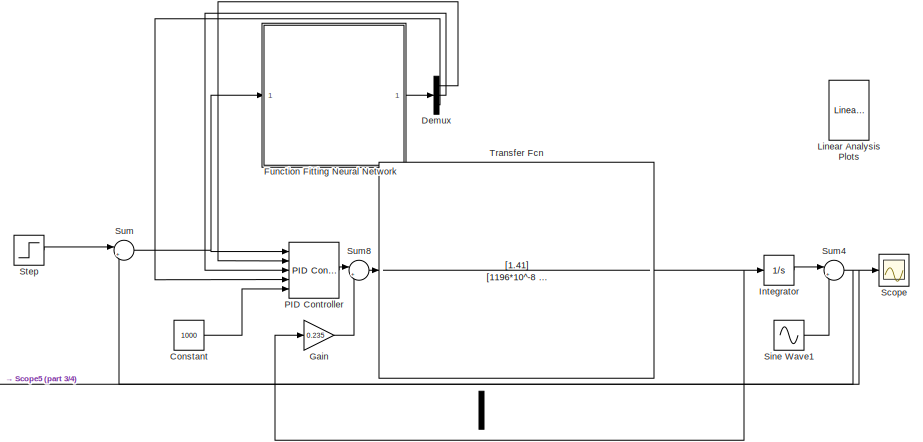
[diagram: root canvas - part 1/4, top right region]
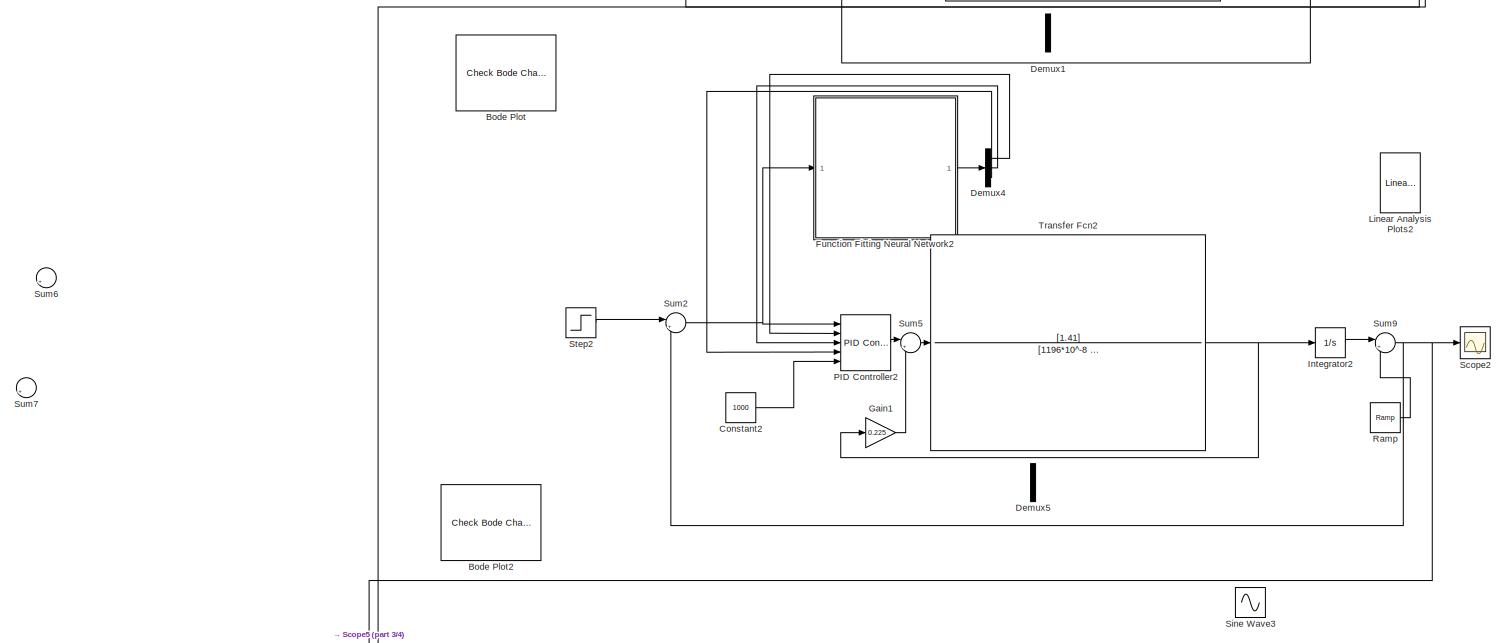
[diagram: root canvas - part 2/4, full width, middle band]
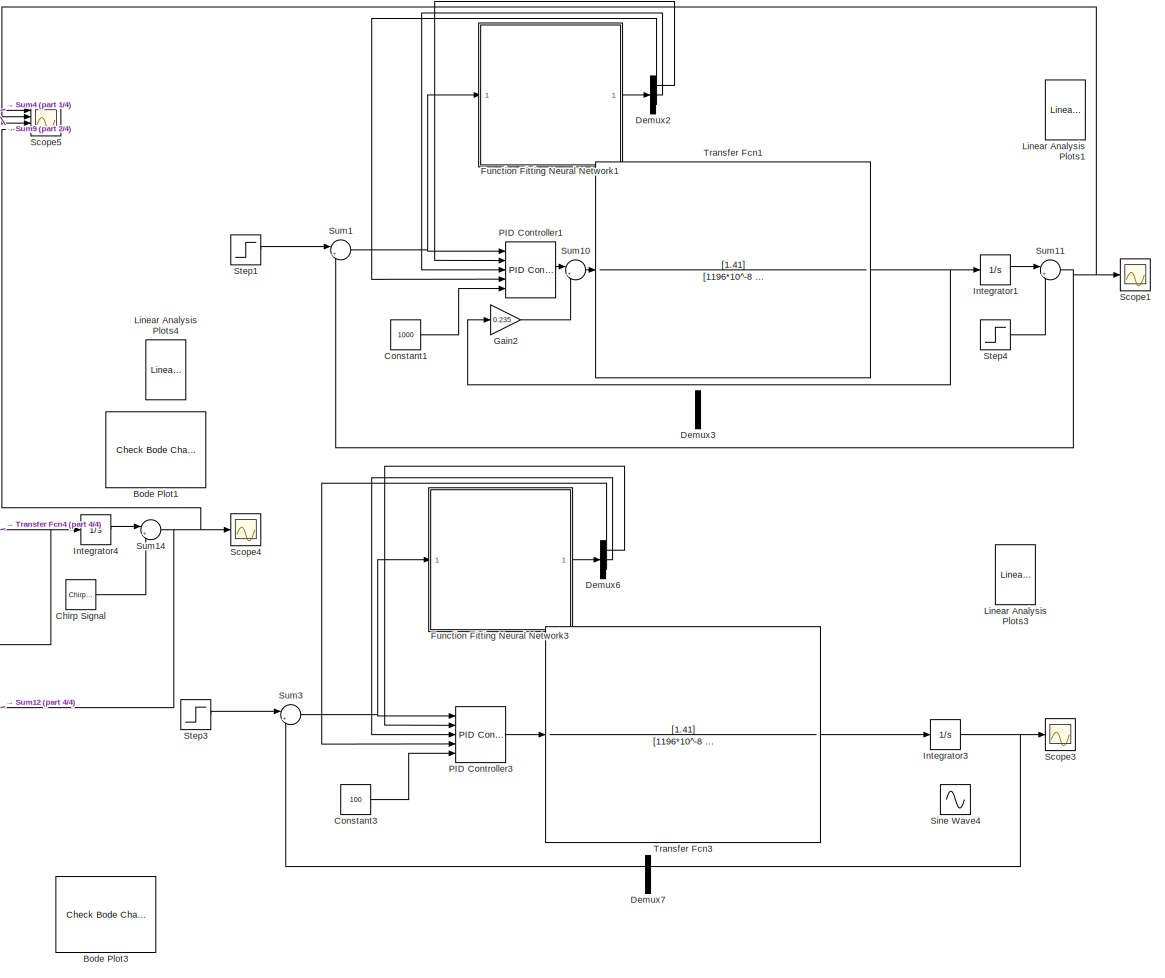
[diagram: root canvas - part 3/4, bottom right region]
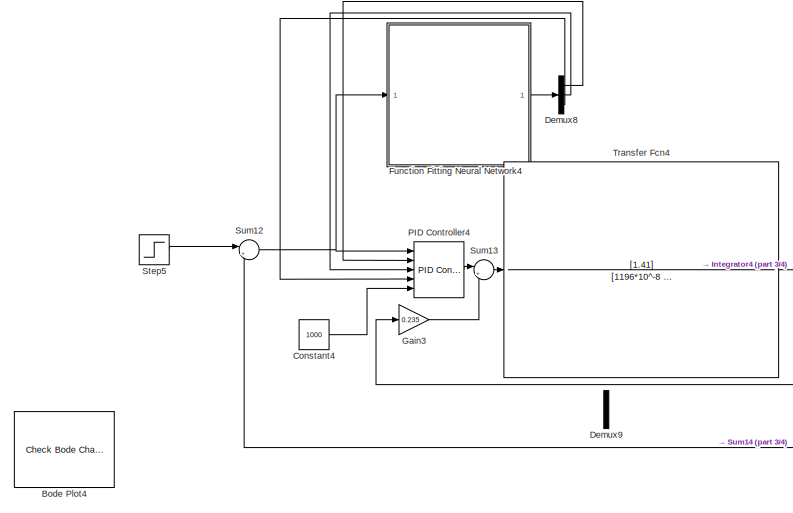
[diagram: root canvas - part 4/4, bottom left region]
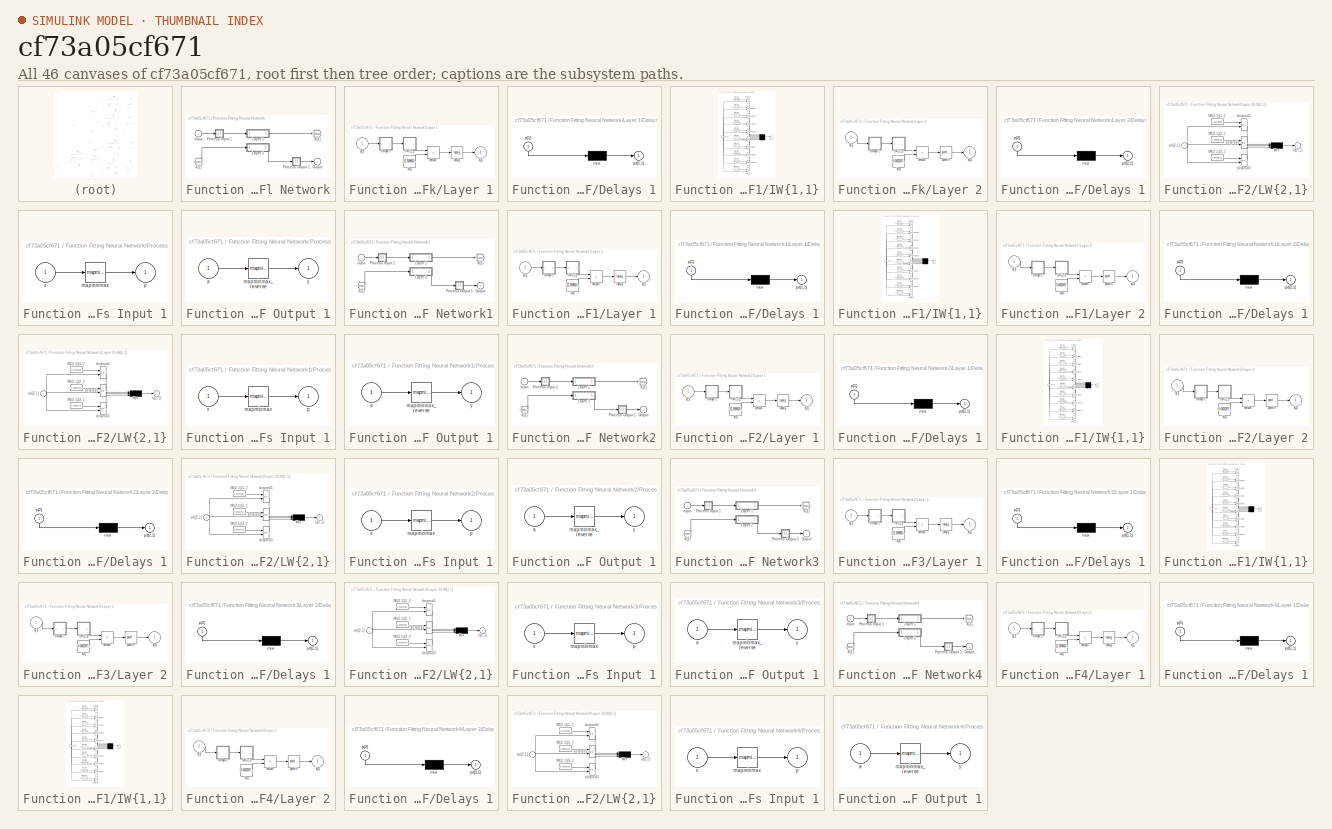
[diagram: thumbnail index - all 46 canvases of the model, root first then tree order]
MODEL slx_cf73a05cf671
KIND model
CONFIG AbsTol = auto
CONFIG EnableMultiTasking = off
CONFIG FixedStep = auto
CONFIG MaxStep = auto
CONFIG MinStep = auto
CONFIG RelTol = 1e-3
CONFIG SampleTimeConstraint = Unconstrained
CONFIG Solver = VariableStepAuto
CONFIG SolverName = VariableStepAuto
CONFIG StartTime = 0.0
CONFIG StopTime = 100
BLOCK [Reference] Bode Plot  REF=slctrlblks/Model Verification/Check Bode 
Characteristics
  InstantiateOnLoad = on
  Ports = []
  SourceBlock = slctrlblks/Model Verification/Check Bode \nCharacteristics
  SourceProductBaseCode = SD
  SourceType = Checks_Bode
BLOCK [Reference] Bode Plot1  REF=slctrlblks/Model Verification/Check Bode 
Characteristics
  InstantiateOnLoad = on
  Ports = []
  SourceBlock = slctrlblks/Model Verification/Check Bode \nCharacteristics
  SourceProductBaseCode = SD
  SourceType = Checks_Bode
BLOCK [Reference] Bode Plot2  REF=slctrlblks/Model Verification/Check Bode 
Characteristics
  InstantiateOnLoad = on
  Ports = []
  SourceBlock = slctrlblks/Model Verification/Check Bode \nCharacteristics
  SourceProductBaseCode = SD
  SourceType = Checks_Bode
BLOCK [Reference] Bode Plot3  REF=slctrlblks/Model Verification/Check Bode 
Characteristics
  InstantiateOnLoad = on
  Ports = []
  SourceBlock = slctrlblks/Model Verification/Check Bode \nCharacteristics
  SourceProductBaseCode = SD
  SourceType = Checks_Bode
BLOCK [Reference] Bode Plot4  REF=slctrlblks/Model Verification/Check Bode 
Characteristics
  InstantiateOnLoad = on
  Ports = []
  SourceBlock = slctrlblks/Model Verification/Check Bode \nCharacteristics
  SourceProductBaseCode = SD
  SourceType = Checks_Bode
BLOCK [Reference] Chirp Signal  REF=simulink/Sources/Chirp Signal
  Ports = [0, 1]
  SourceBlock = simulink/Sources/Chirp Signal
  SourceProductBaseCode = SL
  SourceType = chirp
BLOCK [Constant] Constant
  Value = 1000
BLOCK [Constant] Constant1
  Value = 1000
BLOCK [Constant] Constant2
  Value = 1000
BLOCK [Constant] Constant3
  Value = 100
BLOCK [Constant] Constant4
  Value = 1000
BLOCK [Demux] Demux
  Outputs = 3
  Ports = [1, 3]
BLOCK [Demux] Demux1
  Outputs = 3
  Ports = [1, 3]
BLOCK [Demux] Demux2
  Outputs = 3
  Ports = [1, 3]
BLOCK [Demux] Demux3
  Outputs = 3
  Ports = [1, 3]
BLOCK [Demux] Demux4
  Outputs = 3
  Ports = [1, 3]
BLOCK [Demux] Demux5
  Outputs = 3
  Ports = [1, 3]
BLOCK [Demux] Demux6
  Outputs = 3
  Ports = [1, 3]
BLOCK [Demux] Demux7
  Outputs = 3
  Ports = [1, 3]
BLOCK [Demux] Demux8
  Outputs = 3
  Ports = [1, 3]
BLOCK [Demux] Demux9
  Outputs = 3
  Ports = [1, 3]
BLOCK [SubSystem] Function Fitting Neural Network
  Ports = [1, 1]
  RequestExecContextInheritance = off
BLOCK [From] Function Fitting Neural Network/ a{1} 
  GotoTag = feedback1
BLOCK [Inport] Function Fitting Neural Network/Input
  PortDimensions = 1
BLOCK [SubSystem] Function Fitting Neural Network/Layer 1
  Ports = [1, 1]
  RequestExecContextInheritance = off
BLOCK [SubSystem] Function Fitting Neural Network/Layer 1/Delays 1
  Ports = [1, 1]
  RequestExecContextInheritance = off
BLOCK [Mux] Function Fitting Neural Network/Layer 1/Delays 1/mux
  Inputs = 1
  Ports = [1, 1]
BLOCK [Outport] Function Fitting Neural Network/Layer 1/Delays 1/pd{1,1}
BLOCK [Inport] Function Fitting Neural Network/Layer 1/Delays 1/p{1}
  NameLocation = left
  PortDimensions = 1
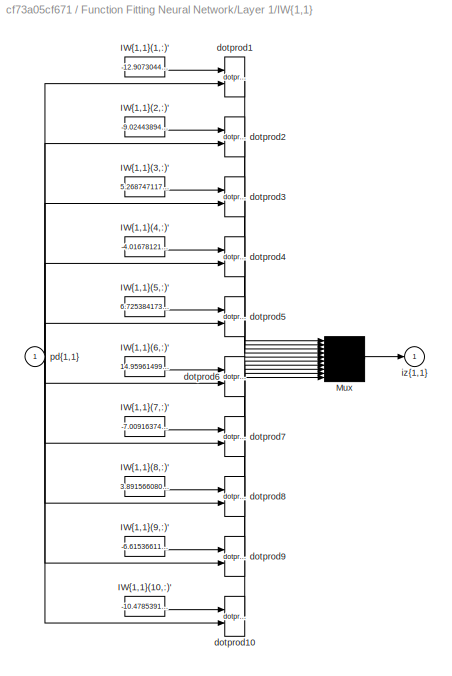
BLOCK [SubSystem] Function Fitting Neural Network/Layer 1/IW{1,1}
  Ports = [1, 1]
  RequestExecContextInheritance = off
BLOCK [Constant] Function Fitting Neural Network/Layer 1/IW{1,1}/IW{1,1}(1,:)'
  Value = -12.9073044744596590049923179321922361850738525390625
BLOCK [Constant] Function Fitting Neural Network/Layer 1/IW{1,1}/IW{1,1}(10,:)'
  Value = -10.4785391749825560481212960439734160900115966796875
BLOCK [Constant] Function Fitting Neural Network/Layer 1/IW{1,1}/IW{1,1}(2,:)'
  Value = -9.0244389478379520852513451245613396167755126953125
BLOCK [Constant] Function Fitting Neural Network/Layer 1/IW{1,1}/IW{1,1}(3,:)'
  Value = 5.26874711704473241979940212331712245941162109375
BLOCK [Constant] Function Fitting Neural Network/Layer 1/IW{1,1}/IW{1,1}(4,:)'
  Value = -4.016781218023648847292861319147050380706787109375
BLOCK [Constant] Function Fitting Neural Network/Layer 1/IW{1,1}/IW{1,1}(5,:)'
  Value = 6.7253841730729302383906542672775685787200927734375
BLOCK [Constant] Function Fitting Neural Network/Layer 1/IW{1,1}/IW{1,1}(6,:)'
  Value = 14.959614993743709732143543078564107418060302734375
BLOCK [Constant] Function Fitting Neural Network/Layer 1/IW{1,1}/IW{1,1}(7,:)'
  Value = -7.00916374216306170552570620202459394931793212890625
BLOCK [Constant] Function Fitting Neural Network/Layer 1/IW{1,1}/IW{1,1}(8,:)'
  Value = 3.89156608010953330989423193386755883693695068359375
BLOCK [Constant] Function Fitting Neural Network/Layer 1/IW{1,1}/IW{1,1}(9,:)'
  Value = -6.61536611858912859673864659271202981472015380859375
BLOCK [Mux] Function Fitting Neural Network/Layer 1/IW{1,1}/Mux
  Inputs = 10
  Ports = [10, 1]
BLOCK [Reference] Function Fitting Neural Network/Layer 1/IW{1,1}/dotprod1  REF=neural/Weight Functions/dotprod
  Ports = [2, 1]
  SourceBlock = neural/Weight Functions/dotprod
  SourceProductBaseCode = NN
  SourceType = DOTPROD
BLOCK [Reference] Function Fitting Neural Network/Layer 1/IW{1,1}/dotprod10  REF=neural/Weight Functions/dotprod
  Ports = [2, 1]
  SourceBlock = neural/Weight Functions/dotprod
  SourceProductBaseCode = NN
  SourceType = DOTPROD
BLOCK [Reference] Function Fitting Neural Network/Layer 1/IW{1,1}/dotprod2  REF=neural/Weight Functions/dotprod
  Ports = [2, 1]
  SourceBlock = neural/Weight Functions/dotprod
  SourceProductBaseCode = NN
  SourceType = DOTPROD
BLOCK [Reference] Function Fitting Neural Network/Layer 1/IW{1,1}/dotprod3  REF=neural/Weight Functions/dotprod
  Ports = [2, 1]
  SourceBlock = neural/Weight Functions/dotprod
  SourceProductBaseCode = NN
  SourceType = DOTPROD
BLOCK [Reference] Function Fitting Neural Network/Layer 1/IW{1,1}/dotprod4  REF=neural/Weight Functions/dotprod
  Ports = [2, 1]
  SourceBlock = neural/Weight Functions/dotprod
  SourceProductBaseCode = NN
  SourceType = DOTPROD
BLOCK [Reference] Function Fitting Neural Network/Layer 1/IW{1,1}/dotprod5  REF=neural/Weight Functions/dotprod
  Ports = [2, 1]
  SourceBlock = neural/Weight Functions/dotprod
  SourceProductBaseCode = NN
  SourceType = DOTPROD
BLOCK [Reference] Function Fitting Neural Network/Layer 1/IW{1,1}/dotprod6  REF=neural/Weight Functions/dotprod
  Ports = [2, 1]
  SourceBlock = neural/Weight Functions/dotprod
  SourceProductBaseCode = NN
  SourceType = DOTPROD
BLOCK [Reference] Function Fitting Neural Network/Layer 1/IW{1,1}/dotprod7  REF=neural/Weight Functions/dotprod
  Ports = [2, 1]
  SourceBlock = neural/Weight Functions/dotprod
  SourceProductBaseCode = NN
  SourceType = DOTPROD
BLOCK [Reference] Function Fitting Neural Network/Layer 1/IW{1,1}/dotprod8  REF=neural/Weight Functions/dotprod
  Ports = [2, 1]
  SourceBlock = neural/Weight Functions/dotprod
  SourceProductBaseCode = NN
  SourceType = DOTPROD
BLOCK [Reference] Function Fitting Neural Network/Layer 1/IW{1,1}/dotprod9  REF=neural/Weight Functions/dotprod
  Ports = [2, 1]
  SourceBlock = neural/Weight Functions/dotprod
  SourceProductBaseCode = NN
  SourceType = DOTPROD
BLOCK [Outport] Function Fitting Neural Network/Layer 1/IW{1,1}/iz{1,1}
BLOCK [Inport] Function Fitting Neural Network/Layer 1/IW{1,1}/pd{1,1}
  PortDimensions = 1
BLOCK [Outport] Function Fitting Neural Network/Layer 1/a{1}
  InitialOutput = [0;0;0;0;0;0;0;0;0;0]
BLOCK [Constant] Function Fitting Neural Network/Layer 1/b{1}
  Value = [12.3599620324570338425473892129957675933837890625;7.28462692697473102043659309856593608856201171875;-3.147878652254105791286065141321159899234771728515625;1.090504508044382259157600856269709765911102294921875;-0.2230347377048832180346238374113454483449459075927734375;1.728406700369881310308528554742224514484405517578125;-1.8157799782530730237084526379476301372051239013671875;2.0627538561415059703...<+136ch>  <repeated x5 — deduplicated; at blocks: b{1}>
BLOCK [Sum] Function Fitting Neural Network/Layer 1/netsum
  IconShape = rectangular
  InputSameDT = on
  Inputs = 2
  OutDataTypeStr = Inherit: Same as first input
  Ports = [2, 1]
  SaturateOnIntegerOverflow = on
BLOCK [Inport] Function Fitting Neural Network/Layer 1/p{1}
  PortDimensions = 1
BLOCK [Reference] Function Fitting Neural Network/Layer 1/tansig  REF=neural/Transfer Functions/tansig
  Ports = [1, 1]
  SourceBlock = neural/Transfer Functions/tansig
  SourceProductBaseCode = NN
  SourceType = TANSIG
BLOCK [SubSystem] Function Fitting Neural Network/Layer 2
  Ports = [1, 1]
  RequestExecContextInheritance = off
BLOCK [SubSystem] Function Fitting Neural Network/Layer 2/Delays 1
  Ports = [1, 1]
  RequestExecContextInheritance = off
BLOCK [Mux] Function Fitting Neural Network/Layer 2/Delays 1/mux
  Inputs = 1
  Ports = [1, 1]
BLOCK [Outport] Function Fitting Neural Network/Layer 2/Delays 1/pd{2,1}
BLOCK [Inport] Function Fitting Neural Network/Layer 2/Delays 1/p{2}
  NameLocation = left
  PortDimensions = 10
BLOCK [SubSystem] Function Fitting Neural Network/Layer 2/LW{2,1}
  Ports = [1, 1]
  RequestExecContextInheritance = off
BLOCK [Constant] Function Fitting Neural Network/Layer 2/LW{2,1}/IW{2,1}(1,:)'
  Value = [0.033132358651691791451288082726023276336491107940673828125;0.039364685937330730347571972060904954560101032257080078125;-0.0727785432769227913496479231980629265308380126953125;0.11548128599358171986200005676437285728752613067626953125;-0.021208388639714713386208444489966495893895626068115234375;-0.060836292494181119783203115503056324087083339691162109375;0.1313300064448214565793193742138100787997...<+188ch>  <repeated x5 — deduplicated; at blocks: IW{2,1}(1,:)'>
BLOCK [Constant] Function Fitting Neural Network/Layer 2/LW{2,1}/IW{2,1}(2,:)'
  Value = [0.0990670389886005586799200273162568919360637664794921875;0.11057148049165756165113094766638823784887790679931640625;-0.2226024964947059536779505606318707577884197235107421875;0.3177140935935314214333402560441754758358001708984375;-0.1351418202673890511800181002399767749011516571044921875;0.028823984393284728111606085576568148098886013031005859375;0.02718290228827262983157808662326715420931577682...<+191ch>  <repeated x5 — deduplicated; at blocks: IW{2,1}(2,:)'>
BLOCK [Constant] Function Fitting Neural Network/Layer 2/LW{2,1}/IW{2,1}(3,:)'
  Value = [0.040067730043734671452337892105788341723382472991943359375;0.0469737740924170699141626528216875158250331878662109375;-0.08844285697131214207811211736043333075940608978271484375;0.1372497036609894582870339263536152429878711700439453125;-0.032578254943136798760239258854198851622641086578369140625;-0.04828750806303512554951140600678627379238605499267578125;0.1221419948081097217595925030764192342758...<+183ch>  <repeated x5 — deduplicated; at blocks: IW{2,1}(3,:)'>
BLOCK [Mux] Function Fitting Neural Network/Layer 2/LW{2,1}/Mux
  Inputs = 3
  Ports = [3, 1]
BLOCK [Inport] Function Fitting Neural Network/Layer 2/LW{2,1}/ad{2,1}
  PortDimensions = 10
BLOCK [Reference] Function Fitting Neural Network/Layer 2/LW{2,1}/dotprod1  REF=neural/Weight Functions/dotprod
  Ports = [2, 1]
  SourceBlock = neural/Weight Functions/dotprod
  SourceProductBaseCode = NN
  SourceType = DOTPROD
BLOCK [Reference] Function Fitting Neural Network/Layer 2/LW{2,1}/dotprod2  REF=neural/Weight Functions/dotprod
  Ports = [2, 1]
  SourceBlock = neural/Weight Functions/dotprod
  SourceProductBaseCode = NN
  SourceType = DOTPROD
BLOCK [Reference] Function Fitting Neural Network/Layer 2/LW{2,1}/dotprod3  REF=neural/Weight Functions/dotprod
  Ports = [2, 1]
  SourceBlock = neural/Weight Functions/dotprod
  SourceProductBaseCode = NN
  SourceType = DOTPROD
BLOCK [Outport] Function Fitting Neural Network/Layer 2/LW{2,1}/lz{2,1}
BLOCK [Inport] Function Fitting Neural Network/Layer 2/a{1} 
  PortDimensions = 10
BLOCK [Outport] Function Fitting Neural Network/Layer 2/a{2}
  InitialOutput = [0;0;0]
BLOCK [Constant] Function Fitting Neural Network/Layer 2/b{2}
  Value = [0.043259772646987708355492685541321407072246074676513671875;-0.0163242287832554393289807848077543894760310649871826171875;0.037062363768982579947941502496178145520389080047607421875]
BLOCK [Sum] Function Fitting Neural Network/Layer 2/netsum
  IconShape = rectangular
  InputSameDT = on
  Inputs = 2
  OutDataTypeStr = Inherit: Same as first input
  Ports = [2, 1]
  SaturateOnIntegerOverflow = on
BLOCK [Reference] Function Fitting Neural Network/Layer 2/purelin  REF=neural/Transfer Functions/purelin
  Ports = [1, 1]
  SourceBlock = neural/Transfer Functions/purelin
  SourceProductBaseCode = NN
  SourceType = PURELIN
BLOCK [Outport] Function Fitting Neural Network/Output
  InitialOutput = [0;0;0]
BLOCK [SubSystem] Function Fitting Neural Network/Process Input 1
  Ports = [1, 1]
  RequestExecContextInheritance = off
BLOCK [Reference] Function Fitting Neural Network/Process Input 1/mapminmax  REF=neural/Processing Functions/mapminmax
  Ports = [1, 1]
  SourceBlock = neural/Processing Functions/mapminmax
  SourceProductBaseCode = NN
  SourceType = MAPMINMAX Preprocess
BLOCK [Outport] Function Fitting Neural Network/Process Input 1/p
  PortDimensions = 1
BLOCK [Inport] Function Fitting Neural Network/Process Input 1/x
  PortDimensions = 1
BLOCK [SubSystem] Function Fitting Neural Network/Process Output 1
  Ports = [1, 1]
  RequestExecContextInheritance = off
BLOCK [Inport] Function Fitting Neural Network/Process Output 1/a
  PortDimensions = 3
BLOCK [Reference] Function Fitting Neural Network/Process Output 1/mapminmax_reverse  REF=neural/Processing Functions/mapminmax_reverse
  Ports = [1, 1]
  SourceBlock = neural/Processing Functions/mapminmax_reverse
  SourceProductBaseCode = NN
  SourceType = MAPMINMAX Reverse Process
BLOCK [Outport] Function Fitting Neural Network/Process Output 1/y
  PortDimensions = 3
BLOCK [Goto] Function Fitting Neural Network/a{1}
  GotoTag = feedback1
BLOCK [SubSystem] Function Fitting Neural Network1
  Ports = [1, 1]
  RequestExecContextInheritance = off
BLOCK [From] Function Fitting Neural Network1/ a{1} 
  GotoTag = feedback1
BLOCK [Inport] Function Fitting Neural Network1/Input
  PortDimensions = 1
BLOCK [SubSystem] Function Fitting Neural Network1/Layer 1
  Ports = [1, 1]
  RequestExecContextInheritance = off
BLOCK [SubSystem] Function Fitting Neural Network1/Layer 1/Delays 1
  Ports = [1, 1]
  RequestExecContextInheritance = off
BLOCK [Mux] Function Fitting Neural Network1/Layer 1/Delays 1/mux
  Inputs = 1
  Ports = [1, 1]
BLOCK [Outport] Function Fitting Neural Network1/Layer 1/Delays 1/pd{1,1}
BLOCK [Inport] Function Fitting Neural Network1/Layer 1/Delays 1/p{1}
  NameLocation = left
  PortDimensions = 1
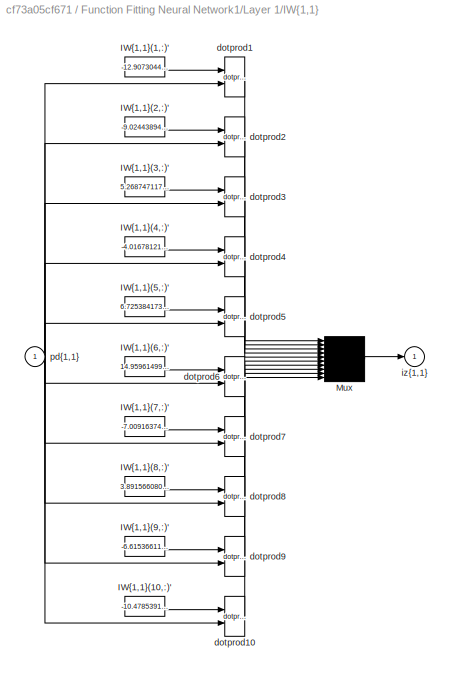
BLOCK [SubSystem] Function Fitting Neural Network1/Layer 1/IW{1,1}
  Ports = [1, 1]
  RequestExecContextInheritance = off
BLOCK [Constant] Function Fitting Neural Network1/Layer 1/IW{1,1}/IW{1,1}(1,:)'
  Value = -12.9073044744596590049923179321922361850738525390625
BLOCK [Constant] Function Fitting Neural Network1/Layer 1/IW{1,1}/IW{1,1}(10,:)'
  Value = -10.4785391749825560481212960439734160900115966796875
BLOCK [Constant] Function Fitting Neural Network1/Layer 1/IW{1,1}/IW{1,1}(2,:)'
  Value = -9.0244389478379520852513451245613396167755126953125
BLOCK [Constant] Function Fitting Neural Network1/Layer 1/IW{1,1}/IW{1,1}(3,:)'
  Value = 5.26874711704473241979940212331712245941162109375
BLOCK [Constant] Function Fitting Neural Network1/Layer 1/IW{1,1}/IW{1,1}(4,:)'
  Value = -4.016781218023648847292861319147050380706787109375
BLOCK [Constant] Function Fitting Neural Network1/Layer 1/IW{1,1}/IW{1,1}(5,:)'
  Value = 6.7253841730729302383906542672775685787200927734375
BLOCK [Constant] Function Fitting Neural Network1/Layer 1/IW{1,1}/IW{1,1}(6,:)'
  Value = 14.959614993743709732143543078564107418060302734375
BLOCK [Constant] Function Fitting Neural Network1/Layer 1/IW{1,1}/IW{1,1}(7,:)'
  Value = -7.00916374216306170552570620202459394931793212890625
BLOCK [Constant] Function Fitting Neural Network1/Layer 1/IW{1,1}/IW{1,1}(8,:)'
  Value = 3.89156608010953330989423193386755883693695068359375
BLOCK [Constant] Function Fitting Neural Network1/Layer 1/IW{1,1}/IW{1,1}(9,:)'
  Value = -6.61536611858912859673864659271202981472015380859375
BLOCK [Mux] Function Fitting Neural Network1/Layer 1/IW{1,1}/Mux
  Inputs = 10
  Ports = [10, 1]
BLOCK [Reference] Function Fitting Neural Network1/Layer 1/IW{1,1}/dotprod1  REF=neural/Weight Functions/dotprod
  Ports = [2, 1]
  SourceBlock = neural/Weight Functions/dotprod
  SourceProductBaseCode = NN
  SourceType = DOTPROD
BLOCK [Reference] Function Fitting Neural Network1/Layer 1/IW{1,1}/dotprod10  REF=neural/Weight Functions/dotprod
  Ports = [2, 1]
  SourceBlock = neural/Weight Functions/dotprod
  SourceProductBaseCode = NN
  SourceType = DOTPROD
BLOCK [Reference] Function Fitting Neural Network1/Layer 1/IW{1,1}/dotprod2  REF=neural/Weight Functions/dotprod
  Ports = [2, 1]
  SourceBlock = neural/Weight Functions/dotprod
  SourceProductBaseCode = NN
  SourceType = DOTPROD
BLOCK [Reference] Function Fitting Neural Network1/Layer 1/IW{1,1}/dotprod3  REF=neural/Weight Functions/dotprod
  Ports = [2, 1]
  SourceBlock = neural/Weight Functions/dotprod
  SourceProductBaseCode = NN
  SourceType = DOTPROD
BLOCK [Reference] Function Fitting Neural Network1/Layer 1/IW{1,1}/dotprod4  REF=neural/Weight Functions/dotprod
  Ports = [2, 1]
  SourceBlock = neural/Weight Functions/dotprod
  SourceProductBaseCode = NN
  SourceType = DOTPROD
BLOCK [Reference] Function Fitting Neural Network1/Layer 1/IW{1,1}/dotprod5  REF=neural/Weight Functions/dotprod
  Ports = [2, 1]
  SourceBlock = neural/Weight Functions/dotprod
  SourceProductBaseCode = NN
  SourceType = DOTPROD
BLOCK [Reference] Function Fitting Neural Network1/Layer 1/IW{1,1}/dotprod6  REF=neural/Weight Functions/dotprod
  Ports = [2, 1]
  SourceBlock = neural/Weight Functions/dotprod
  SourceProductBaseCode = NN
  SourceType = DOTPROD
BLOCK [Reference] Function Fitting Neural Network1/Layer 1/IW{1,1}/dotprod7  REF=neural/Weight Functions/dotprod
  Ports = [2, 1]
  SourceBlock = neural/Weight Functions/dotprod
  SourceProductBaseCode = NN
  SourceType = DOTPROD
BLOCK [Reference] Function Fitting Neural Network1/Layer 1/IW{1,1}/dotprod8  REF=neural/Weight Functions/dotprod
  Ports = [2, 1]
  SourceBlock = neural/Weight Functions/dotprod
  SourceProductBaseCode = NN
  SourceType = DOTPROD
BLOCK [Reference] Function Fitting Neural Network1/Layer 1/IW{1,1}/dotprod9  REF=neural/Weight Functions/dotprod
  Ports = [2, 1]
  SourceBlock = neural/Weight Functions/dotprod
  SourceProductBaseCode = NN
  SourceType = DOTPROD
BLOCK [Outport] Function Fitting Neural Network1/Layer 1/IW{1,1}/iz{1,1}
BLOCK [Inport] Function Fitting Neural Network1/Layer 1/IW{1,1}/pd{1,1}
  PortDimensions = 1
BLOCK [Outport] Function Fitting Neural Network1/Layer 1/a{1}
  InitialOutput = [0;0;0;0;0;0;0;0;0;0]
BLOCK [Constant] Function Fitting Neural Network1/Layer 1/b{1}
BLOCK [Sum] Function Fitting Neural Network1/Layer 1/netsum
  IconShape = rectangular
  InputSameDT = on
  Inputs = 2
  OutDataTypeStr = Inherit: Same as first input
  Ports = [2, 1]
  SaturateOnIntegerOverflow = on
BLOCK [Inport] Function Fitting Neural Network1/Layer 1/p{1}
  PortDimensions = 1
BLOCK [Reference] Function Fitting Neural Network1/Layer 1/tansig  REF=neural/Transfer Functions/tansig
  Ports = [1, 1]
  SourceBlock = neural/Transfer Functions/tansig
  SourceProductBaseCode = NN
  SourceType = TANSIG
BLOCK [SubSystem] Function Fitting Neural Network1/Layer 2
  Ports = [1, 1]
  RequestExecContextInheritance = off
BLOCK [SubSystem] Function Fitting Neural Network1/Layer 2/Delays 1
  Ports = [1, 1]
  RequestExecContextInheritance = off
BLOCK [Mux] Function Fitting Neural Network1/Layer 2/Delays 1/mux
  Inputs = 1
  Ports = [1, 1]
BLOCK [Outport] Function Fitting Neural Network1/Layer 2/Delays 1/pd{2,1}
BLOCK [Inport] Function Fitting Neural Network1/Layer 2/Delays 1/p{2}
  NameLocation = left
  PortDimensions = 10
BLOCK [SubSystem] Function Fitting Neural Network1/Layer 2/LW{2,1}
  Ports = [1, 1]
  RequestExecContextInheritance = off
BLOCK [Constant] Function Fitting Neural Network1/Layer 2/LW{2,1}/IW{2,1}(1,:)'
BLOCK [Constant] Function Fitting Neural Network1/Layer 2/LW{2,1}/IW{2,1}(2,:)'
BLOCK [Constant] Function Fitting Neural Network1/Layer 2/LW{2,1}/IW{2,1}(3,:)'
BLOCK [Mux] Function Fitting Neural Network1/Layer 2/LW{2,1}/Mux
  Inputs = 3
  Ports = [3, 1]
BLOCK [Inport] Function Fitting Neural Network1/Layer 2/LW{2,1}/ad{2,1}
  PortDimensions = 10
BLOCK [Reference] Function Fitting Neural Network1/Layer 2/LW{2,1}/dotprod1  REF=neural/Weight Functions/dotprod
  Ports = [2, 1]
  SourceBlock = neural/Weight Functions/dotprod
  SourceProductBaseCode = NN
  SourceType = DOTPROD
BLOCK [Reference] Function Fitting Neural Network1/Layer 2/LW{2,1}/dotprod2  REF=neural/Weight Functions/dotprod
  Ports = [2, 1]
  SourceBlock = neural/Weight Functions/dotprod
  SourceProductBaseCode = NN
  SourceType = DOTPROD
BLOCK [Reference] Function Fitting Neural Network1/Layer 2/LW{2,1}/dotprod3  REF=neural/Weight Functions/dotprod
  Ports = [2, 1]
  SourceBlock = neural/Weight Functions/dotprod
  SourceProductBaseCode = NN
  SourceType = DOTPROD
BLOCK [Outport] Function Fitting Neural Network1/Layer 2/LW{2,1}/lz{2,1}
BLOCK [Inport] Function Fitting Neural Network1/Layer 2/a{1} 
  PortDimensions = 10
BLOCK [Outport] Function Fitting Neural Network1/Layer 2/a{2}
  InitialOutput = [0;0;0]
BLOCK [Constant] Function Fitting Neural Network1/Layer 2/b{2}
  Value = [0.043259772646987708355492685541321407072246074676513671875;-0.0163242287832554393289807848077543894760310649871826171875;0.037062363768982579947941502496178145520389080047607421875]
BLOCK [Sum] Function Fitting Neural Network1/Layer 2/netsum
  IconShape = rectangular
  InputSameDT = on
  Inputs = 2
  OutDataTypeStr = Inherit: Same as first input
  Ports = [2, 1]
  SaturateOnIntegerOverflow = on
BLOCK [Reference] Function Fitting Neural Network1/Layer 2/purelin  REF=neural/Transfer Functions/purelin
  Ports = [1, 1]
  SourceBlock = neural/Transfer Functions/purelin
  SourceProductBaseCode = NN
  SourceType = PURELIN
BLOCK [Outport] Function Fitting Neural Network1/Output
  InitialOutput = [0;0;0]
BLOCK [SubSystem] Function Fitting Neural Network1/Process Input 1
  Ports = [1, 1]
  RequestExecContextInheritance = off
BLOCK [Reference] Function Fitting Neural Network1/Process Input 1/mapminmax  REF=neural/Processing Functions/mapminmax
  Ports = [1, 1]
  SourceBlock = neural/Processing Functions/mapminmax
  SourceProductBaseCode = NN
  SourceType = MAPMINMAX Preprocess
BLOCK [Outport] Function Fitting Neural Network1/Process Input 1/p
  PortDimensions = 1
BLOCK [Inport] Function Fitting Neural Network1/Process Input 1/x
  PortDimensions = 1
BLOCK [SubSystem] Function Fitting Neural Network1/Process Output 1
  Ports = [1, 1]
  RequestExecContextInheritance = off
BLOCK [Inport] Function Fitting Neural Network1/Process Output 1/a
  PortDimensions = 3
BLOCK [Reference] Function Fitting Neural Network1/Process Output 1/mapminmax_reverse  REF=neural/Processing Functions/mapminmax_reverse
  Ports = [1, 1]
  SourceBlock = neural/Processing Functions/mapminmax_reverse
  SourceProductBaseCode = NN
  SourceType = MAPMINMAX Reverse Process
BLOCK [Outport] Function Fitting Neural Network1/Process Output 1/y
  PortDimensions = 3
BLOCK [Goto] Function Fitting Neural Network1/a{1}
  GotoTag = feedback1
BLOCK [SubSystem] Function Fitting Neural Network2
  Ports = [1, 1]
  RequestExecContextInheritance = off
BLOCK [From] Function Fitting Neural Network2/ a{1} 
  GotoTag = feedback1
BLOCK [Inport] Function Fitting Neural Network2/Input
  PortDimensions = 1
BLOCK [SubSystem] Function Fitting Neural Network2/Layer 1
  Ports = [1, 1]
  RequestExecContextInheritance = off
BLOCK [SubSystem] Function Fitting Neural Network2/Layer 1/Delays 1
  Ports = [1, 1]
  RequestExecContextInheritance = off
BLOCK [Mux] Function Fitting Neural Network2/Layer 1/Delays 1/mux
  Inputs = 1
  Ports = [1, 1]
BLOCK [Outport] Function Fitting Neural Network2/Layer 1/Delays 1/pd{1,1}
BLOCK [Inport] Function Fitting Neural Network2/Layer 1/Delays 1/p{1}
  NameLocation = left
  PortDimensions = 1
BLOCK [SubSystem] Function Fitting Neural Network2/Layer 1/IW{1,1}
  Ports = [1, 1]
  RequestExecContextInheritance = off
BLOCK [Constant] Function Fitting Neural Network2/Layer 1/IW{1,1}/IW{1,1}(1,:)'
  Value = -12.9073044744596590049923179321922361850738525390625
BLOCK [Constant] Function Fitting Neural Network2/Layer 1/IW{1,1}/IW{1,1}(10,:)'
  Value = -10.4785391749825560481212960439734160900115966796875
BLOCK [Constant] Function Fitting Neural Network2/Layer 1/IW{1,1}/IW{1,1}(2,:)'
  Value = -9.0244389478379520852513451245613396167755126953125
BLOCK [Constant] Function Fitting Neural Network2/Layer 1/IW{1,1}/IW{1,1}(3,:)'
  Value = 5.26874711704473241979940212331712245941162109375
BLOCK [Constant] Function Fitting Neural Network2/Layer 1/IW{1,1}/IW{1,1}(4,:)'
  Value = -4.016781218023648847292861319147050380706787109375
BLOCK [Constant] Function Fitting Neural Network2/Layer 1/IW{1,1}/IW{1,1}(5,:)'
  Value = 6.7253841730729302383906542672775685787200927734375
BLOCK [Constant] Function Fitting Neural Network2/Layer 1/IW{1,1}/IW{1,1}(6,:)'
  Value = 14.959614993743709732143543078564107418060302734375
BLOCK [Constant] Function Fitting Neural Network2/Layer 1/IW{1,1}/IW{1,1}(7,:)'
  Value = -7.00916374216306170552570620202459394931793212890625
BLOCK [Constant] Function Fitting Neural Network2/Layer 1/IW{1,1}/IW{1,1}(8,:)'
  Value = 3.89156608010953330989423193386755883693695068359375
BLOCK [Constant] Function Fitting Neural Network2/Layer 1/IW{1,1}/IW{1,1}(9,:)'
  Value = -6.61536611858912859673864659271202981472015380859375
BLOCK [Mux] Function Fitting Neural Network2/Layer 1/IW{1,1}/Mux
  Inputs = 10
  Ports = [10, 1]
BLOCK [Reference] Function Fitting Neural Network2/Layer 1/IW{1,1}/dotprod1  REF=neural/Weight Functions/dotprod
  Ports = [2, 1]
  SourceBlock = neural/Weight Functions/dotprod
  SourceProductBaseCode = NN
  SourceType = DOTPROD
BLOCK [Reference] Function Fitting Neural Network2/Layer 1/IW{1,1}/dotprod10  REF=neural/Weight Functions/dotprod
  Ports = [2, 1]
  SourceBlock = neural/Weight Functions/dotprod
  SourceProductBaseCode = NN
  SourceType = DOTPROD
BLOCK [Reference] Function Fitting Neural Network2/Layer 1/IW{1,1}/dotprod2  REF=neural/Weight Functions/dotprod
  Ports = [2, 1]
  SourceBlock = neural/Weight Functions/dotprod
  SourceProductBaseCode = NN
  SourceType = DOTPROD
BLOCK [Reference] Function Fitting Neural Network2/Layer 1/IW{1,1}/dotprod3  REF=neural/Weight Functions/dotprod
  Ports = [2, 1]
  SourceBlock = neural/Weight Functions/dotprod
  SourceProductBaseCode = NN
  SourceType = DOTPROD
BLOCK [Reference] Function Fitting Neural Network2/Layer 1/IW{1,1}/dotprod4  REF=neural/Weight Functions/dotprod
  Ports = [2, 1]
  SourceBlock = neural/Weight Functions/dotprod
  SourceProductBaseCode = NN
  SourceType = DOTPROD
BLOCK [Reference] Function Fitting Neural Network2/Layer 1/IW{1,1}/dotprod5  REF=neural/Weight Functions/dotprod
  Ports = [2, 1]
  SourceBlock = neural/Weight Functions/dotprod
  SourceProductBaseCode = NN
  SourceType = DOTPROD
BLOCK [Reference] Function Fitting Neural Network2/Layer 1/IW{1,1}/dotprod6  REF=neural/Weight Functions/dotprod
  Ports = [2, 1]
  SourceBlock = neural/Weight Functions/dotprod
  SourceProductBaseCode = NN
  SourceType = DOTPROD
BLOCK [Reference] Function Fitting Neural Network2/Layer 1/IW{1,1}/dotprod7  REF=neural/Weight Functions/dotprod
  Ports = [2, 1]
  SourceBlock = neural/Weight Functions/dotprod
  SourceProductBaseCode = NN
  SourceType = DOTPROD
BLOCK [Reference] Function Fitting Neural Network2/Layer 1/IW{1,1}/dotprod8  REF=neural/Weight Functions/dotprod
  Ports = [2, 1]
  SourceBlock = neural/Weight Functions/dotprod
  SourceProductBaseCode = NN
  SourceType = DOTPROD
BLOCK [Reference] Function Fitting Neural Network2/Layer 1/IW{1,1}/dotprod9  REF=neural/Weight Functions/dotprod
  Ports = [2, 1]
  SourceBlock = neural/Weight Functions/dotprod
  SourceProductBaseCode = NN
  SourceType = DOTPROD
BLOCK [Outport] Function Fitting Neural Network2/Layer 1/IW{1,1}/iz{1,1}
BLOCK [Inport] Function Fitting Neural Network2/Layer 1/IW{1,1}/pd{1,1}
  PortDimensions = 1
BLOCK [Outport] Function Fitting Neural Network2/Layer 1/a{1}
  InitialOutput = [0;0;0;0;0;0;0;0;0;0]
BLOCK [Constant] Function Fitting Neural Network2/Layer 1/b{1}
BLOCK [Sum] Function Fitting Neural Network2/Layer 1/netsum
  IconShape = rectangular
  InputSameDT = on
  Inputs = 2
  OutDataTypeStr = Inherit: Same as first input
  Ports = [2, 1]
  SaturateOnIntegerOverflow = on
BLOCK [Inport] Function Fitting Neural Network2/Layer 1/p{1}
  PortDimensions = 1
BLOCK [Reference] Function Fitting Neural Network2/Layer 1/tansig  REF=neural/Transfer Functions/tansig
  Ports = [1, 1]
  SourceBlock = neural/Transfer Functions/tansig
  SourceProductBaseCode = NN
  SourceType = TANSIG
BLOCK [SubSystem] Function Fitting Neural Network2/Layer 2
  Ports = [1, 1]
  RequestExecContextInheritance = off
BLOCK [SubSystem] Function Fitting Neural Network2/Layer 2/Delays 1
  Ports = [1, 1]
  RequestExecContextInheritance = off
BLOCK [Mux] Function Fitting Neural Network2/Layer 2/Delays 1/mux
  Inputs = 1
  Ports = [1, 1]
BLOCK [Outport] Function Fitting Neural Network2/Layer 2/Delays 1/pd{2,1}
BLOCK [Inport] Function Fitting Neural Network2/Layer 2/Delays 1/p{2}
  NameLocation = left
  PortDimensions = 10
BLOCK [SubSystem] Function Fitting Neural Network2/Layer 2/LW{2,1}
  Ports = [1, 1]
  RequestExecContextInheritance = off
BLOCK [Constant] Function Fitting Neural Network2/Layer 2/LW{2,1}/IW{2,1}(1,:)'
BLOCK [Constant] Function Fitting Neural Network2/Layer 2/LW{2,1}/IW{2,1}(2,:)'
BLOCK [Constant] Function Fitting Neural Network2/Layer 2/LW{2,1}/IW{2,1}(3,:)'
BLOCK [Mux] Function Fitting Neural Network2/Layer 2/LW{2,1}/Mux
  Inputs = 3
  Ports = [3, 1]
BLOCK [Inport] Function Fitting Neural Network2/Layer 2/LW{2,1}/ad{2,1}
  PortDimensions = 10
BLOCK [Reference] Function Fitting Neural Network2/Layer 2/LW{2,1}/dotprod1  REF=neural/Weight Functions/dotprod
  Ports = [2, 1]
  SourceBlock = neural/Weight Functions/dotprod
  SourceProductBaseCode = NN
  SourceType = DOTPROD
BLOCK [Reference] Function Fitting Neural Network2/Layer 2/LW{2,1}/dotprod2  REF=neural/Weight Functions/dotprod
  Ports = [2, 1]
  SourceBlock = neural/Weight Functions/dotprod
  SourceProductBaseCode = NN
  SourceType = DOTPROD
BLOCK [Reference] Function Fitting Neural Network2/Layer 2/LW{2,1}/dotprod3  REF=neural/Weight Functions/dotprod
  Ports = [2, 1]
  SourceBlock = neural/Weight Functions/dotprod
  SourceProductBaseCode = NN
  SourceType = DOTPROD
BLOCK [Outport] Function Fitting Neural Network2/Layer 2/LW{2,1}/lz{2,1}
BLOCK [Inport] Function Fitting Neural Network2/Layer 2/a{1} 
  PortDimensions = 10
BLOCK [Outport] Function Fitting Neural Network2/Layer 2/a{2}
  InitialOutput = [0;0;0]
BLOCK [Constant] Function Fitting Neural Network2/Layer 2/b{2}
  Value = [0.043259772646987708355492685541321407072246074676513671875;-0.0163242287832554393289807848077543894760310649871826171875;0.037062363768982579947941502496178145520389080047607421875]
BLOCK [Sum] Function Fitting Neural Network2/Layer 2/netsum
  IconShape = rectangular
  InputSameDT = on
  Inputs = 2
  OutDataTypeStr = Inherit: Same as first input
  Ports = [2, 1]
  SaturateOnIntegerOverflow = on
BLOCK [Reference] Function Fitting Neural Network2/Layer 2/purelin  REF=neural/Transfer Functions/purelin
  Ports = [1, 1]
  SourceBlock = neural/Transfer Functions/purelin
  SourceProductBaseCode = NN
  SourceType = PURELIN
BLOCK [Outport] Function Fitting Neural Network2/Output
  InitialOutput = [0;0;0]
BLOCK [SubSystem] Function Fitting Neural Network2/Process Input 1
  Ports = [1, 1]
  RequestExecContextInheritance = off
BLOCK [Reference] Function Fitting Neural Network2/Process Input 1/mapminmax  REF=neural/Processing Functions/mapminmax
  Ports = [1, 1]
  SourceBlock = neural/Processing Functions/mapminmax
  SourceProductBaseCode = NN
  SourceType = MAPMINMAX Preprocess
BLOCK [Outport] Function Fitting Neural Network2/Process Input 1/p
  PortDimensions = 1
BLOCK [Inport] Function Fitting Neural Network2/Process Input 1/x
  PortDimensions = 1
BLOCK [SubSystem] Function Fitting Neural Network2/Process Output 1
  Ports = [1, 1]
  RequestExecContextInheritance = off
BLOCK [Inport] Function Fitting Neural Network2/Process Output 1/a
  PortDimensions = 3
BLOCK [Reference] Function Fitting Neural Network2/Process Output 1/mapminmax_reverse  REF=neural/Processing Functions/mapminmax_reverse
  Ports = [1, 1]
  SourceBlock = neural/Processing Functions/mapminmax_reverse
  SourceProductBaseCode = NN
  SourceType = MAPMINMAX Reverse Process
BLOCK [Outport] Function Fitting Neural Network2/Process Output 1/y
  PortDimensions = 3
BLOCK [Goto] Function Fitting Neural Network2/a{1}
  GotoTag = feedback1
BLOCK [SubSystem] Function Fitting Neural Network3
  Ports = [1, 1]
  RequestExecContextInheritance = off
BLOCK [From] Function Fitting Neural Network3/ a{1} 
  GotoTag = feedback1
BLOCK [Inport] Function Fitting Neural Network3/Input
  PortDimensions = 1
BLOCK [SubSystem] Function Fitting Neural Network3/Layer 1
  Ports = [1, 1]
  RequestExecContextInheritance = off
BLOCK [SubSystem] Function Fitting Neural Network3/Layer 1/Delays 1
  Ports = [1, 1]
  RequestExecContextInheritance = off
BLOCK [Mux] Function Fitting Neural Network3/Layer 1/Delays 1/mux
  Inputs = 1
  Ports = [1, 1]
BLOCK [Outport] Function Fitting Neural Network3/Layer 1/Delays 1/pd{1,1}
BLOCK [Inport] Function Fitting Neural Network3/Layer 1/Delays 1/p{1}
  NameLocation = left
  PortDimensions = 1
BLOCK [SubSystem] Function Fitting Neural Network3/Layer 1/IW{1,1}
  Ports = [1, 1]
  RequestExecContextInheritance = off
BLOCK [Constant] Function Fitting Neural Network3/Layer 1/IW{1,1}/IW{1,1}(1,:)'
  Value = -12.9073044744596590049923179321922361850738525390625
BLOCK [Constant] Function Fitting Neural Network3/Layer 1/IW{1,1}/IW{1,1}(10,:)'
  Value = -10.4785391749825560481212960439734160900115966796875
BLOCK [Constant] Function Fitting Neural Network3/Layer 1/IW{1,1}/IW{1,1}(2,:)'
  Value = -9.0244389478379520852513451245613396167755126953125
BLOCK [Constant] Function Fitting Neural Network3/Layer 1/IW{1,1}/IW{1,1}(3,:)'
  Value = 5.26874711704473241979940212331712245941162109375
BLOCK [Constant] Function Fitting Neural Network3/Layer 1/IW{1,1}/IW{1,1}(4,:)'
  Value = -4.016781218023648847292861319147050380706787109375
BLOCK [Constant] Function Fitting Neural Network3/Layer 1/IW{1,1}/IW{1,1}(5,:)'
  Value = 6.7253841730729302383906542672775685787200927734375
BLOCK [Constant] Function Fitting Neural Network3/Layer 1/IW{1,1}/IW{1,1}(6,:)'
  Value = 14.959614993743709732143543078564107418060302734375
BLOCK [Constant] Function Fitting Neural Network3/Layer 1/IW{1,1}/IW{1,1}(7,:)'
  Value = -7.00916374216306170552570620202459394931793212890625
BLOCK [Constant] Function Fitting Neural Network3/Layer 1/IW{1,1}/IW{1,1}(8,:)'
  Value = 3.89156608010953330989423193386755883693695068359375
BLOCK [Constant] Function Fitting Neural Network3/Layer 1/IW{1,1}/IW{1,1}(9,:)'
  Value = -6.61536611858912859673864659271202981472015380859375
BLOCK [Mux] Function Fitting Neural Network3/Layer 1/IW{1,1}/Mux
  Inputs = 10
  Ports = [10, 1]
BLOCK [Reference] Function Fitting Neural Network3/Layer 1/IW{1,1}/dotprod1  REF=neural/Weight Functions/dotprod
  Ports = [2, 1]
  SourceBlock = neural/Weight Functions/dotprod
  SourceProductBaseCode = NN
  SourceType = DOTPROD
BLOCK [Reference] Function Fitting Neural Network3/Layer 1/IW{1,1}/dotprod10  REF=neural/Weight Functions/dotprod
  Ports = [2, 1]
  SourceBlock = neural/Weight Functions/dotprod
  SourceProductBaseCode = NN
  SourceType = DOTPROD
BLOCK [Reference] Function Fitting Neural Network3/Layer 1/IW{1,1}/dotprod2  REF=neural/Weight Functions/dotprod
  Ports = [2, 1]
  SourceBlock = neural/Weight Functions/dotprod
  SourceProductBaseCode = NN
  SourceType = DOTPROD
BLOCK [Reference] Function Fitting Neural Network3/Layer 1/IW{1,1}/dotprod3  REF=neural/Weight Functions/dotprod
  Ports = [2, 1]
  SourceBlock = neural/Weight Functions/dotprod
  SourceProductBaseCode = NN
  SourceType = DOTPROD
BLOCK [Reference] Function Fitting Neural Network3/Layer 1/IW{1,1}/dotprod4  REF=neural/Weight Functions/dotprod
  Ports = [2, 1]
  SourceBlock = neural/Weight Functions/dotprod
  SourceProductBaseCode = NN
  SourceType = DOTPROD
BLOCK [Reference] Function Fitting Neural Network3/Layer 1/IW{1,1}/dotprod5  REF=neural/Weight Functions/dotprod
  Ports = [2, 1]
  SourceBlock = neural/Weight Functions/dotprod
  SourceProductBaseCode = NN
  SourceType = DOTPROD
BLOCK [Reference] Function Fitting Neural Network3/Layer 1/IW{1,1}/dotprod6  REF=neural/Weight Functions/dotprod
  Ports = [2, 1]
  SourceBlock = neural/Weight Functions/dotprod
  SourceProductBaseCode = NN
  SourceType = DOTPROD
BLOCK [Reference] Function Fitting Neural Network3/Layer 1/IW{1,1}/dotprod7  REF=neural/Weight Functions/dotprod
  Ports = [2, 1]
  SourceBlock = neural/Weight Functions/dotprod
  SourceProductBaseCode = NN
  SourceType = DOTPROD
BLOCK [Reference] Function Fitting Neural Network3/Layer 1/IW{1,1}/dotprod8  REF=neural/Weight Functions/dotprod
  Ports = [2, 1]
  SourceBlock = neural/Weight Functions/dotprod
  SourceProductBaseCode = NN
  SourceType = DOTPROD
BLOCK [Reference] Function Fitting Neural Network3/Layer 1/IW{1,1}/dotprod9  REF=neural/Weight Functions/dotprod
  Ports = [2, 1]
  SourceBlock = neural/Weight Functions/dotprod
  SourceProductBaseCode = NN
  SourceType = DOTPROD
BLOCK [Outport] Function Fitting Neural Network3/Layer 1/IW{1,1}/iz{1,1}
BLOCK [Inport] Function Fitting Neural Network3/Layer 1/IW{1,1}/pd{1,1}
  PortDimensions = 1
BLOCK [Outport] Function Fitting Neural Network3/Layer 1/a{1}
  InitialOutput = [0;0;0;0;0;0;0;0;0;0]
BLOCK [Constant] Function Fitting Neural Network3/Layer 1/b{1}
BLOCK [Sum] Function Fitting Neural Network3/Layer 1/netsum
  IconShape = rectangular
  InputSameDT = on
  Inputs = 2
  OutDataTypeStr = Inherit: Same as first input
  Ports = [2, 1]
  SaturateOnIntegerOverflow = on
BLOCK [Inport] Function Fitting Neural Network3/Layer 1/p{1}
  PortDimensions = 1
BLOCK [Reference] Function Fitting Neural Network3/Layer 1/tansig  REF=neural/Transfer Functions/tansig
  Ports = [1, 1]
  SourceBlock = neural/Transfer Functions/tansig
  SourceProductBaseCode = NN
  SourceType = TANSIG
BLOCK [SubSystem] Function Fitting Neural Network3/Layer 2
  Ports = [1, 1]
  RequestExecContextInheritance = off
BLOCK [SubSystem] Function Fitting Neural Network3/Layer 2/Delays 1
  Ports = [1, 1]
  RequestExecContextInheritance = off
BLOCK [Mux] Function Fitting Neural Network3/Layer 2/Delays 1/mux
  Inputs = 1
  Ports = [1, 1]
BLOCK [Outport] Function Fitting Neural Network3/Layer 2/Delays 1/pd{2,1}
BLOCK [Inport] Function Fitting Neural Network3/Layer 2/Delays 1/p{2}
  NameLocation = left
  PortDimensions = 10
BLOCK [SubSystem] Function Fitting Neural Network3/Layer 2/LW{2,1}
  Ports = [1, 1]
  RequestExecContextInheritance = off
BLOCK [Constant] Function Fitting Neural Network3/Layer 2/LW{2,1}/IW{2,1}(1,:)'
BLOCK [Constant] Function Fitting Neural Network3/Layer 2/LW{2,1}/IW{2,1}(2,:)'
BLOCK [Constant] Function Fitting Neural Network3/Layer 2/LW{2,1}/IW{2,1}(3,:)'
BLOCK [Mux] Function Fitting Neural Network3/Layer 2/LW{2,1}/Mux
  Inputs = 3
  Ports = [3, 1]
BLOCK [Inport] Function Fitting Neural Network3/Layer 2/LW{2,1}/ad{2,1}
  PortDimensions = 10
BLOCK [Reference] Function Fitting Neural Network3/Layer 2/LW{2,1}/dotprod1  REF=neural/Weight Functions/dotprod
  Ports = [2, 1]
  SourceBlock = neural/Weight Functions/dotprod
  SourceProductBaseCode = NN
  SourceType = DOTPROD
BLOCK [Reference] Function Fitting Neural Network3/Layer 2/LW{2,1}/dotprod2  REF=neural/Weight Functions/dotprod
  Ports = [2, 1]
  SourceBlock = neural/Weight Functions/dotprod
  SourceProductBaseCode = NN
  SourceType = DOTPROD
BLOCK [Reference] Function Fitting Neural Network3/Layer 2/LW{2,1}/dotprod3  REF=neural/Weight Functions/dotprod
  Ports = [2, 1]
  SourceBlock = neural/Weight Functions/dotprod
  SourceProductBaseCode = NN
  SourceType = DOTPROD
BLOCK [Outport] Function Fitting Neural Network3/Layer 2/LW{2,1}/lz{2,1}
BLOCK [Inport] Function Fitting Neural Network3/Layer 2/a{1} 
  PortDimensions = 10
BLOCK [Outport] Function Fitting Neural Network3/Layer 2/a{2}
  InitialOutput = [0;0;0]
BLOCK [Constant] Function Fitting Neural Network3/Layer 2/b{2}
  Value = [0.043259772646987708355492685541321407072246074676513671875;-0.0163242287832554393289807848077543894760310649871826171875;0.037062363768982579947941502496178145520389080047607421875]
BLOCK [Sum] Function Fitting Neural Network3/Layer 2/netsum
  IconShape = rectangular
  InputSameDT = on
  Inputs = 2
  OutDataTypeStr = Inherit: Same as first input
  Ports = [2, 1]
  SaturateOnIntegerOverflow = on
BLOCK [Reference] Function Fitting Neural Network3/Layer 2/purelin  REF=neural/Transfer Functions/purelin
  Ports = [1, 1]
  SourceBlock = neural/Transfer Functions/purelin
  SourceProductBaseCode = NN
  SourceType = PURELIN
BLOCK [Outport] Function Fitting Neural Network3/Output
  InitialOutput = [0;0;0]
BLOCK [SubSystem] Function Fitting Neural Network3/Process Input 1
  Ports = [1, 1]
  RequestExecContextInheritance = off
BLOCK [Reference] Function Fitting Neural Network3/Process Input 1/mapminmax  REF=neural/Processing Functions/mapminmax
  Ports = [1, 1]
  SourceBlock = neural/Processing Functions/mapminmax
  SourceProductBaseCode = NN
  SourceType = MAPMINMAX Preprocess
BLOCK [Outport] Function Fitting Neural Network3/Process Input 1/p
  PortDimensions = 1
BLOCK [Inport] Function Fitting Neural Network3/Process Input 1/x
  PortDimensions = 1
BLOCK [SubSystem] Function Fitting Neural Network3/Process Output 1
  Ports = [1, 1]
  RequestExecContextInheritance = off
BLOCK [Inport] Function Fitting Neural Network3/Process Output 1/a
  PortDimensions = 3
BLOCK [Reference] Function Fitting Neural Network3/Process Output 1/mapminmax_reverse  REF=neural/Processing Functions/mapminmax_reverse
  Ports = [1, 1]
  SourceBlock = neural/Processing Functions/mapminmax_reverse
  SourceProductBaseCode = NN
  SourceType = MAPMINMAX Reverse Process
BLOCK [Outport] Function Fitting Neural Network3/Process Output 1/y
  PortDimensions = 3
BLOCK [Goto] Function Fitting Neural Network3/a{1}
  GotoTag = feedback1
BLOCK [SubSystem] Function Fitting Neural Network4
  Ports = [1, 1]
  RequestExecContextInheritance = off
BLOCK [From] Function Fitting Neural Network4/ a{1} 
  GotoTag = feedback1
BLOCK [Inport] Function Fitting Neural Network4/Input
  PortDimensions = 1
BLOCK [SubSystem] Function Fitting Neural Network4/Layer 1
  Ports = [1, 1]
  RequestExecContextInheritance = off
BLOCK [SubSystem] Function Fitting Neural Network4/Layer 1/Delays 1
  Ports = [1, 1]
  RequestExecContextInheritance = off
BLOCK [Mux] Function Fitting Neural Network4/Layer 1/Delays 1/mux
  Inputs = 1
  Ports = [1, 1]
BLOCK [Outport] Function Fitting Neural Network4/Layer 1/Delays 1/pd{1,1}
BLOCK [Inport] Function Fitting Neural Network4/Layer 1/Delays 1/p{1}
  NameLocation = left
  PortDimensions = 1
BLOCK [SubSystem] Function Fitting Neural Network4/Layer 1/IW{1,1}
  Ports = [1, 1]
  RequestExecContextInheritance = off
BLOCK [Constant] Function Fitting Neural Network4/Layer 1/IW{1,1}/IW{1,1}(1,:)'
  Value = -12.9073044744596590049923179321922361850738525390625
BLOCK [Constant] Function Fitting Neural Network4/Layer 1/IW{1,1}/IW{1,1}(10,:)'
  Value = -10.4785391749825560481212960439734160900115966796875
BLOCK [Constant] Function Fitting Neural Network4/Layer 1/IW{1,1}/IW{1,1}(2,:)'
  Value = -9.0244389478379520852513451245613396167755126953125
BLOCK [Constant] Function Fitting Neural Network4/Layer 1/IW{1,1}/IW{1,1}(3,:)'
  Value = 5.26874711704473241979940212331712245941162109375
BLOCK [Constant] Function Fitting Neural Network4/Layer 1/IW{1,1}/IW{1,1}(4,:)'
  Value = -4.016781218023648847292861319147050380706787109375
BLOCK [Constant] Function Fitting Neural Network4/Layer 1/IW{1,1}/IW{1,1}(5,:)'
  Value = 6.7253841730729302383906542672775685787200927734375
BLOCK [Constant] Function Fitting Neural Network4/Layer 1/IW{1,1}/IW{1,1}(6,:)'
  Value = 14.959614993743709732143543078564107418060302734375
BLOCK [Constant] Function Fitting Neural Network4/Layer 1/IW{1,1}/IW{1,1}(7,:)'
  Value = -7.00916374216306170552570620202459394931793212890625
BLOCK [Constant] Function Fitting Neural Network4/Layer 1/IW{1,1}/IW{1,1}(8,:)'
  Value = 3.89156608010953330989423193386755883693695068359375
BLOCK [Constant] Function Fitting Neural Network4/Layer 1/IW{1,1}/IW{1,1}(9,:)'
  Value = -6.61536611858912859673864659271202981472015380859375
BLOCK [Mux] Function Fitting Neural Network4/Layer 1/IW{1,1}/Mux
  Inputs = 10
  Ports = [10, 1]
BLOCK [Reference] Function Fitting Neural Network4/Layer 1/IW{1,1}/dotprod1  REF=neural/Weight Functions/dotprod
  Ports = [2, 1]
  SourceBlock = neural/Weight Functions/dotprod
  SourceProductBaseCode = NN
  SourceType = DOTPROD
BLOCK [Reference] Function Fitting Neural Network4/Layer 1/IW{1,1}/dotprod10  REF=neural/Weight Functions/dotprod
  Ports = [2, 1]
  SourceBlock = neural/Weight Functions/dotprod
  SourceProductBaseCode = NN
  SourceType = DOTPROD
BLOCK [Reference] Function Fitting Neural Network4/Layer 1/IW{1,1}/dotprod2  REF=neural/Weight Functions/dotprod
  Ports = [2, 1]
  SourceBlock = neural/Weight Functions/dotprod
  SourceProductBaseCode = NN
  SourceType = DOTPROD
BLOCK [Reference] Function Fitting Neural Network4/Layer 1/IW{1,1}/dotprod3  REF=neural/Weight Functions/dotprod
  Ports = [2, 1]
  SourceBlock = neural/Weight Functions/dotprod
  SourceProductBaseCode = NN
  SourceType = DOTPROD
BLOCK [Reference] Function Fitting Neural Network4/Layer 1/IW{1,1}/dotprod4  REF=neural/Weight Functions/dotprod
  Ports = [2, 1]
  SourceBlock = neural/Weight Functions/dotprod
  SourceProductBaseCode = NN
  SourceType = DOTPROD
BLOCK [Reference] Function Fitting Neural Network4/Layer 1/IW{1,1}/dotprod5  REF=neural/Weight Functions/dotprod
  Ports = [2, 1]
  SourceBlock = neural/Weight Functions/dotprod
  SourceProductBaseCode = NN
  SourceType = DOTPROD
BLOCK [Reference] Function Fitting Neural Network4/Layer 1/IW{1,1}/dotprod6  REF=neural/Weight Functions/dotprod
  Ports = [2, 1]
  SourceBlock = neural/Weight Functions/dotprod
  SourceProductBaseCode = NN
  SourceType = DOTPROD
BLOCK [Reference] Function Fitting Neural Network4/Layer 1/IW{1,1}/dotprod7  REF=neural/Weight Functions/dotprod
  Ports = [2, 1]
  SourceBlock = neural/Weight Functions/dotprod
  SourceProductBaseCode = NN
  SourceType = DOTPROD
BLOCK [Reference] Function Fitting Neural Network4/Layer 1/IW{1,1}/dotprod8  REF=neural/Weight Functions/dotprod
  Ports = [2, 1]
  SourceBlock = neural/Weight Functions/dotprod
  SourceProductBaseCode = NN
  SourceType = DOTPROD
BLOCK [Reference] Function Fitting Neural Network4/Layer 1/IW{1,1}/dotprod9  REF=neural/Weight Functions/dotprod
  Ports = [2, 1]
  SourceBlock = neural/Weight Functions/dotprod
  SourceProductBaseCode = NN
  SourceType = DOTPROD
BLOCK [Outport] Function Fitting Neural Network4/Layer 1/IW{1,1}/iz{1,1}
BLOCK [Inport] Function Fitting Neural Network4/Layer 1/IW{1,1}/pd{1,1}
  PortDimensions = 1
BLOCK [Outport] Function Fitting Neural Network4/Layer 1/a{1}
  InitialOutput = [0;0;0;0;0;0;0;0;0;0]
BLOCK [Constant] Function Fitting Neural Network4/Layer 1/b{1}
BLOCK [Sum] Function Fitting Neural Network4/Layer 1/netsum
  IconShape = rectangular
  InputSameDT = on
  Inputs = 2
  OutDataTypeStr = Inherit: Same as first input
  Ports = [2, 1]
  SaturateOnIntegerOverflow = on
BLOCK [Inport] Function Fitting Neural Network4/Layer 1/p{1}
  PortDimensions = 1
BLOCK [Reference] Function Fitting Neural Network4/Layer 1/tansig  REF=neural/Transfer Functions/tansig
  Ports = [1, 1]
  SourceBlock = neural/Transfer Functions/tansig
  SourceProductBaseCode = NN
  SourceType = TANSIG
BLOCK [SubSystem] Function Fitting Neural Network4/Layer 2
  Ports = [1, 1]
  RequestExecContextInheritance = off
BLOCK [SubSystem] Function Fitting Neural Network4/Layer 2/Delays 1
  Ports = [1, 1]
  RequestExecContextInheritance = off
BLOCK [Mux] Function Fitting Neural Network4/Layer 2/Delays 1/mux
  Inputs = 1
  Ports = [1, 1]
BLOCK [Outport] Function Fitting Neural Network4/Layer 2/Delays 1/pd{2,1}
BLOCK [Inport] Function Fitting Neural Network4/Layer 2/Delays 1/p{2}
  NameLocation = left
  PortDimensions = 10
BLOCK [SubSystem] Function Fitting Neural Network4/Layer 2/LW{2,1}
  Ports = [1, 1]
  RequestExecContextInheritance = off
BLOCK [Constant] Function Fitting Neural Network4/Layer 2/LW{2,1}/IW{2,1}(1,:)'
BLOCK [Constant] Function Fitting Neural Network4/Layer 2/LW{2,1}/IW{2,1}(2,:)'
BLOCK [Constant] Function Fitting Neural Network4/Layer 2/LW{2,1}/IW{2,1}(3,:)'
BLOCK [Mux] Function Fitting Neural Network4/Layer 2/LW{2,1}/Mux
  Inputs = 3
  Ports = [3, 1]
BLOCK [Inport] Function Fitting Neural Network4/Layer 2/LW{2,1}/ad{2,1}
  PortDimensions = 10
BLOCK [Reference] Function Fitting Neural Network4/Layer 2/LW{2,1}/dotprod1  REF=neural/Weight Functions/dotprod
  Ports = [2, 1]
  SourceBlock = neural/Weight Functions/dotprod
  SourceProductBaseCode = NN
  SourceType = DOTPROD
BLOCK [Reference] Function Fitting Neural Network4/Layer 2/LW{2,1}/dotprod2  REF=neural/Weight Functions/dotprod
  Ports = [2, 1]
  SourceBlock = neural/Weight Functions/dotprod
  SourceProductBaseCode = NN
  SourceType = DOTPROD
BLOCK [Reference] Function Fitting Neural Network4/Layer 2/LW{2,1}/dotprod3  REF=neural/Weight Functions/dotprod
  Ports = [2, 1]
  SourceBlock = neural/Weight Functions/dotprod
  SourceProductBaseCode = NN
  SourceType = DOTPROD
BLOCK [Outport] Function Fitting Neural Network4/Layer 2/LW{2,1}/lz{2,1}
BLOCK [Inport] Function Fitting Neural Network4/Layer 2/a{1} 
  PortDimensions = 10
BLOCK [Outport] Function Fitting Neural Network4/Layer 2/a{2}
  InitialOutput = [0;0;0]
BLOCK [Constant] Function Fitting Neural Network4/Layer 2/b{2}
  Value = [0.043259772646987708355492685541321407072246074676513671875;-0.0163242287832554393289807848077543894760310649871826171875;0.037062363768982579947941502496178145520389080047607421875]
BLOCK [Sum] Function Fitting Neural Network4/Layer 2/netsum
  IconShape = rectangular
  InputSameDT = on
  Inputs = 2
  OutDataTypeStr = Inherit: Same as first input
  Ports = [2, 1]
  SaturateOnIntegerOverflow = on
BLOCK [Reference] Function Fitting Neural Network4/Layer 2/purelin  REF=neural/Transfer Functions/purelin
  Ports = [1, 1]
  SourceBlock = neural/Transfer Functions/purelin
  SourceProductBaseCode = NN
  SourceType = PURELIN
BLOCK [Outport] Function Fitting Neural Network4/Output
  InitialOutput = [0;0;0]
BLOCK [SubSystem] Function Fitting Neural Network4/Process Input 1
  Ports = [1, 1]
  RequestExecContextInheritance = off
BLOCK [Reference] Function Fitting Neural Network4/Process Input 1/mapminmax  REF=neural/Processing Functions/mapminmax
  Ports = [1, 1]
  SourceBlock = neural/Processing Functions/mapminmax
  SourceProductBaseCode = NN
  SourceType = MAPMINMAX Preprocess
BLOCK [Outport] Function Fitting Neural Network4/Process Input 1/p
  PortDimensions = 1
BLOCK [Inport] Function Fitting Neural Network4/Process Input 1/x
  PortDimensions = 1
BLOCK [SubSystem] Function Fitting Neural Network4/Process Output 1
  Ports = [1, 1]
  RequestExecContextInheritance = off
BLOCK [Inport] Function Fitting Neural Network4/Process Output 1/a
  PortDimensions = 3
BLOCK [Reference] Function Fitting Neural Network4/Process Output 1/mapminmax_reverse  REF=neural/Processing Functions/mapminmax_reverse
  Ports = [1, 1]
  SourceBlock = neural/Processing Functions/mapminmax_reverse
  SourceProductBaseCode = NN
  SourceType = MAPMINMAX Reverse Process
BLOCK [Outport] Function Fitting Neural Network4/Process Output 1/y
  PortDimensions = 3
BLOCK [Goto] Function Fitting Neural Network4/a{1}
  GotoTag = feedback1
BLOCK [Gain] Gain
  Gain = 0.235
BLOCK [Gain] Gain1
  Gain = 0.225
BLOCK [Gain] Gain2
  Gain = 0.235
BLOCK [Gain] Gain3
  Gain = 0.235
BLOCK [Integrator] Integrator
  Ports = [1, 1]
BLOCK [Integrator] Integrator1
  Ports = [1, 1]
BLOCK [Integrator] Integrator2
  Ports = [1, 1]
BLOCK [Integrator] Integrator3
  Ports = [1, 1]
BLOCK [Integrator] Integrator4
  Ports = [1, 1]
BLOCK [Reference] Linear Analysis Plots  REF=slctrlblks/Linear Analysis Plots
  Ports = []
  SourceBlock = slctrlblks/Linear Analysis Plots
  SourceProductBaseCode = SD
  SourceType = SubSystem
BLOCK [Reference] Linear Analysis Plots1  REF=slctrlblks/Linear Analysis Plots
  Ports = []
  SourceBlock = slctrlblks/Linear Analysis Plots
  SourceProductBaseCode = SD
  SourceType = SubSystem
BLOCK [Reference] Linear Analysis Plots2  REF=slctrlblks/Linear Analysis Plots
  Ports = []
  SourceBlock = slctrlblks/Linear Analysis Plots
  SourceProductBaseCode = SD
  SourceType = SubSystem
BLOCK [Reference] Linear Analysis Plots3  REF=slctrlblks/Linear Analysis Plots
  Ports = []
  SourceBlock = slctrlblks/Linear Analysis Plots
  SourceProductBaseCode = SD
  SourceType = SubSystem
BLOCK [Reference] Linear Analysis Plots4  REF=slctrlblks/Linear Analysis Plots
  Ports = []
  SourceBlock = slctrlblks/Linear Analysis Plots
  SourceProductBaseCode = SD
  SourceType = SubSystem
BLOCK [Reference] PID Controller  REF=simulink/Continuous/PID Controller
  Ports = [5, 1]
  SourceBlock = simulink/Continuous/PID Controller
  SourceProductBaseCode = SL
  SourceType = PID 1dof
BLOCK [Reference] PID Controller1  REF=simulink/Continuous/PID Controller
  Ports = [5, 1]
  SourceBlock = simulink/Continuous/PID Controller
  SourceProductBaseCode = SL
  SourceType = PID 1dof
BLOCK [Reference] PID Controller2  REF=simulink/Continuous/PID Controller
  Ports = [5, 1]
  SourceBlock = simulink/Continuous/PID Controller
  SourceProductBaseCode = SL
  SourceType = PID 1dof
BLOCK [Reference] PID Controller3  REF=simulink/Continuous/PID Controller
  Ports = [5, 1]
  SourceBlock = simulink/Continuous/PID Controller
  SourceProductBaseCode = SL
  SourceType = PID 1dof
BLOCK [Reference] PID Controller4  REF=simulink/Continuous/PID Controller
  Ports = [5, 1]
  SourceBlock = simulink/Continuous/PID Controller
  SourceProductBaseCode = SL
  SourceType = PID 1dof
BLOCK [Reference] Ramp  REF=simulink/Sources/Ramp
  Ports = [0, 1]
  SourceBlock = simulink/Sources/Ramp
  SourceProductBaseCode = SL
  SourceType = Ramp
BLOCK [Scope] Scope
  Floating = off
  NumInputPorts = 1
  Ports = [1]
  ScopeSpecificationString = Simulink.scopes.TimeScopeBlockCfg('CurrentConfiguration', extmgr.ConfigurationSet(extmgr.Configuration('Core','General UI',true),extmgr.Configuration('Core','Source UI',true),extmgr.Configuration('Sources','WiredSimulink',true),extmgr.Configuration('Visuals','Time Domain',true,'SerializedDisplays',{struct('MinYLimReal','-0.1289','MaxYLimReal','1.16013','YLabelReal','','MinYLimMag','0.00000','MaxYL...<+1377ch>
BLOCK [Scope] Scope1
  Floating = off
  NumInputPorts = 1
  Ports = [1]
  ScopeSpecificationString = Simulink.scopes.TimeScopeBlockCfg('CurrentConfiguration', extmgr.ConfigurationSet(extmgr.Configuration('Core','General UI',true),extmgr.Configuration('Core','Source UI',true),extmgr.Configuration('Sources','WiredSimulink',true,'DataLoggingVariableName','ScopeData1'),extmgr.Configuration('Visuals','Time Domain',true,'SerializedDisplays',{struct('MinYLimReal','-0.125','MaxYLimReal','1.125','YLabelRe...<+1385ch>
BLOCK [Scope] Scope2
  Floating = off
  NumInputPorts = 1
  Ports = [1]
  ScopeSpecificationString = Simulink.scopes.TimeScopeBlockCfg('CurrentConfiguration', extmgr.ConfigurationSet(extmgr.Configuration('Core','General UI',true),extmgr.Configuration('Core','Source UI',true),extmgr.Configuration('Sources','WiredSimulink',true,'DataLoggingVariableName','ScopeData2'),extmgr.Configuration('Visuals','Time Domain',true,'SerializedDisplays',{struct('MinYLimReal','-0.13657','MaxYLimReal','1.22913','YLab...<+1443ch>
BLOCK [Scope] Scope3
  Floating = off
  NumInputPorts = 1
  Ports = [1]
  ScopeSpecificationString = Simulink.scopes.TimeScopeBlockCfg('CurrentConfiguration', extmgr.ConfigurationSet(extmgr.Configuration('Core','General UI',true),extmgr.Configuration('Core','Source UI',true),extmgr.Configuration('Sources','WiredSimulink',true,'DataLoggingVariableName','ScopeData3'),extmgr.Configuration('Visuals','Time Domain',true,'SerializedDisplays',{struct('MinYLimReal','-0.12665','MaxYLimReal','1.13985','YLab...<+1370ch>
BLOCK [Scope] Scope4
  Floating = off
  NumInputPorts = 1
  Ports = [1]
  ScopeSpecificationString = Simulink.scopes.TimeScopeBlockCfg('CurrentConfiguration', extmgr.ConfigurationSet(extmgr.Configuration('Core','General UI',true),extmgr.Configuration('Core','Source UI',true),extmgr.Configuration('Sources','WiredSimulink',true,'DataLoggingVariableName','ScopeData4'),extmgr.Configuration('Visuals','Time Domain',true,'SerializedDisplays',{struct('MinYLimReal','-0.13281','MaxYLimReal','1.19528','YLab...<+1393ch>
BLOCK [Scope] Scope5
  Floating = off
  NumInputPorts = 4
  Ports = [4]
  ScopeSpecificationString = Simulink.scopes.TimeScopeBlockCfg('CurrentConfiguration', extmgr.ConfigurationSet(extmgr.Configuration('Core','General UI',true),extmgr.Configuration('Core','Source UI',true),extmgr.Configuration('Sources','WiredSimulink',true,'DataLoggingVariableName','ScopeData5'),extmgr.Configuration('Visuals','Time Domain',true,'SerializedDisplays',{struct('MinYLimReal','-0.12809','MaxYLimReal','1.15277','YLab...<+3461ch>
BLOCK [Sin] Sine Wave1
  Frequency = 0.1
  Ports = [0, 1]
  SampleTime = 0
BLOCK [Sin] Sine Wave3
  Ports = [0, 1]
  SampleTime = 0
BLOCK [Sin] Sine Wave4
  Ports = [0, 1]
  SampleTime = 0
BLOCK [Step] Step
  SampleTime = 0
BLOCK [Step] Step1
  SampleTime = 0
BLOCK [Step] Step2
  SampleTime = 0
BLOCK [Step] Step3
  SampleTime = 0
BLOCK [Step] Step4
  SampleTime = 0
BLOCK [Step] Step5
  SampleTime = 0
BLOCK [Sum] Sum
  Inputs = |+-
  Ports = [2, 1]
BLOCK [Sum] Sum1
  Inputs = |+-
  Ports = [2, 1]
BLOCK [Sum] Sum10
  Inputs = |+-
  Ports = [2, 1]
BLOCK [Sum] Sum11
  Inputs = |++
  Ports = [2, 1]
BLOCK [Sum] Sum12
  Inputs = |+-
  Ports = [2, 1]
BLOCK [Sum] Sum13
  Inputs = |+-
  Ports = [2, 1]
BLOCK [Sum] Sum14
  Inputs = |++
  Ports = [2, 1]
BLOCK [Sum] Sum2
  Inputs = |+-
  Ports = [2, 1]
BLOCK [Sum] Sum3
  Inputs = |+-
  Ports = [2, 1]
BLOCK [Sum] Sum4
  Inputs = |++
  Ports = [2, 1]
BLOCK [Sum] Sum5
  Inputs = |+-
  Ports = [2, 1]
BLOCK [Sum] Sum6
  Inputs = |++
  Ports = [2, 1]
BLOCK [Sum] Sum7
  Inputs = |++
  Ports = [2, 1]
BLOCK [Sum] Sum8
  Inputs = |+-
  Ports = [2, 1]
BLOCK [Sum] Sum9
  Inputs = |++
  Ports = [2, 1]
BLOCK [TransferFcn] Transfer Fcn
  Denominator = [1196*10^-8  0.0023  0.36]
  Numerator = [1.41]
BLOCK [TransferFcn] Transfer Fcn1
  Denominator = [1196*10^-8  0.0023  0.36]
  Numerator = [1.41]
BLOCK [TransferFcn] Transfer Fcn2
  Denominator = [1196*10^-8  0.0023  0.36]
  Numerator = [1.41]
BLOCK [TransferFcn] Transfer Fcn3
  Denominator = [1196*10^-8  0.0023  0.36]
  Numerator = [1.41]
BLOCK [TransferFcn] Transfer Fcn4
  Denominator = [1196*10^-8  0.0023  0.36]
  Numerator = [1.41]
LINE Chirp Signal:1 -> Sum14:2
LINE Constant1:1 -> PID Controller1:5
LINE Constant2:1 -> PID Controller2:5
LINE Constant3:1 -> PID Controller3:5
LINE Constant4:1 -> PID Controller4:5
LINE Constant:1 -> PID Controller:5
LINE Demux2:1 -> PID Controller1:2
LINE Demux2:2 -> PID Controller1:3
LINE Demux2:3 -> PID Controller1:4
LINE Demux4:1 -> PID Controller2:2
LINE Demux4:2 -> PID Controller2:3
LINE Demux4:3 -> PID Controller2:4
LINE Demux6:1 -> PID Controller3:2
LINE Demux6:2 -> PID Controller3:3
LINE Demux6:3 -> PID Controller3:4
LINE Demux8:1 -> PID Controller4:2
LINE Demux8:2 -> PID Controller4:3
LINE Demux8:3 -> PID Controller4:4
LINE Demux:1 -> PID Controller:2
LINE Demux:2 -> PID Controller:3
LINE Demux:3 -> PID Controller:4
LINE Function Fitting Neural Network/ a{1} :1 -> Function Fitting Neural Network/Layer 2:1
LINE Function Fitting Neural Network/Input:1 -> Function Fitting Neural Network/Process Input 1:1
LINE Function Fitting Neural Network/Layer 1/Delays 1/mux:1 -> Function Fitting Neural Network/Layer 1/Delays 1/pd{1,1}:1
LINE Function Fitting Neural Network/Layer 1/Delays 1/p{1}:1 -> Function Fitting Neural Network/Layer 1/Delays 1/mux:1
LINE Function Fitting Neural Network/Layer 1/Delays 1:1 -> Function Fitting Neural Network/Layer 1/IW{1,1}:1
LINE Function Fitting Neural Network/Layer 1/IW{1,1}/IW{1,1}(1,:)':1 -> Function Fitting Neural Network/Layer 1/IW{1,1}/dotprod1:1
LINE Function Fitting Neural Network/Layer 1/IW{1,1}/IW{1,1}(10,:)':1 -> Function Fitting Neural Network/Layer 1/IW{1,1}/dotprod10:1
LINE Function Fitting Neural Network/Layer 1/IW{1,1}/IW{1,1}(2,:)':1 -> Function Fitting Neural Network/Layer 1/IW{1,1}/dotprod2:1
LINE Function Fitting Neural Network/Layer 1/IW{1,1}/IW{1,1}(3,:)':1 -> Function Fitting Neural Network/Layer 1/IW{1,1}/dotprod3:1
LINE Function Fitting Neural Network/Layer 1/IW{1,1}/IW{1,1}(4,:)':1 -> Function Fitting Neural Network/Layer 1/IW{1,1}/dotprod4:1
LINE Function Fitting Neural Network/Layer 1/IW{1,1}/IW{1,1}(5,:)':1 -> Function Fitting Neural Network/Layer 1/IW{1,1}/dotprod5:1
LINE Function Fitting Neural Network/Layer 1/IW{1,1}/IW{1,1}(6,:)':1 -> Function Fitting Neural Network/Layer 1/IW{1,1}/dotprod6:1
LINE Function Fitting Neural Network/Layer 1/IW{1,1}/IW{1,1}(7,:)':1 -> Function Fitting Neural Network/Layer 1/IW{1,1}/dotprod7:1
LINE Function Fitting Neural Network/Layer 1/IW{1,1}/IW{1,1}(8,:)':1 -> Function Fitting Neural Network/Layer 1/IW{1,1}/dotprod8:1
LINE Function Fitting Neural Network/Layer 1/IW{1,1}/IW{1,1}(9,:)':1 -> Function Fitting Neural Network/Layer 1/IW{1,1}/dotprod9:1
LINE Function Fitting Neural Network/Layer 1/IW{1,1}/Mux:1 -> Function Fitting Neural Network/Layer 1/IW{1,1}/iz{1,1}:1
LINE Function Fitting Neural Network/Layer 1/IW{1,1}/dotprod10:1 -> Function Fitting Neural Network/Layer 1/IW{1,1}/Mux:10
LINE Function Fitting Neural Network/Layer 1/IW{1,1}/dotprod1:1 -> Function Fitting Neural Network/Layer 1/IW{1,1}/Mux:1
LINE Function Fitting Neural Network/Layer 1/IW{1,1}/dotprod2:1 -> Function Fitting Neural Network/Layer 1/IW{1,1}/Mux:2
LINE Function Fitting Neural Network/Layer 1/IW{1,1}/dotprod3:1 -> Function Fitting Neural Network/Layer 1/IW{1,1}/Mux:3
LINE Function Fitting Neural Network/Layer 1/IW{1,1}/dotprod4:1 -> Function Fitting Neural Network/Layer 1/IW{1,1}/Mux:4
LINE Function Fitting Neural Network/Layer 1/IW{1,1}/dotprod5:1 -> Function Fitting Neural Network/Layer 1/IW{1,1}/Mux:5
LINE Function Fitting Neural Network/Layer 1/IW{1,1}/dotprod6:1 -> Function Fitting Neural Network/Layer 1/IW{1,1}/Mux:6
LINE Function Fitting Neural Network/Layer 1/IW{1,1}/dotprod7:1 -> Function Fitting Neural Network/Layer 1/IW{1,1}/Mux:7
LINE Function Fitting Neural Network/Layer 1/IW{1,1}/dotprod8:1 -> Function Fitting Neural Network/Layer 1/IW{1,1}/Mux:8
LINE Function Fitting Neural Network/Layer 1/IW{1,1}/dotprod9:1 -> Function Fitting Neural Network/Layer 1/IW{1,1}/Mux:9
NET Function Fitting Neural Network/Layer 1/IW{1,1}/pd{1,1}:1 -> Function Fitting Neural Network/Layer 1/IW{1,1}/dotprod10:2, Function Fitting Neural Network/Layer 1/IW{1,1}/dotprod1:2, Function Fitting Neural Network/Layer 1/IW{1,1}/dotprod2:2, Function Fitting Neural Network/Layer 1/IW{1,1}/dotprod3:2, Function Fitting Neural Network/Layer 1/IW{1,1}/dotprod4:2, Function Fitting Neural Network/Layer 1/IW{1,1}/dotprod5:2, Function Fitting Neural Network/Layer 1/IW{1,1}/dotprod6:2, Function Fitting Neural Network/Layer 1/IW{1,1}/dotprod7:2, Function Fitting Neural Network/Layer 1/IW{1,1}/dotprod8:2, Function Fitting Neural Network/Layer 1/IW{1,1}/dotprod9:2
LINE Function Fitting Neural Network/Layer 1/IW{1,1}:1 -> Function Fitting Neural Network/Layer 1/netsum:1
LINE Function Fitting Neural Network/Layer 1/b{1}:1 -> Function Fitting Neural Network/Layer 1/netsum:2
LINE Function Fitting Neural Network/Layer 1/netsum:1 -> Function Fitting Neural Network/Layer 1/tansig:1
LINE Function Fitting Neural Network/Layer 1/p{1}:1 -> Function Fitting Neural Network/Layer 1/Delays 1:1
LINE Function Fitting Neural Network/Layer 1/tansig:1 -> Function Fitting Neural Network/Layer 1/a{1}:1
LINE Function Fitting Neural Network/Layer 1:1 -> Function Fitting Neural Network/a{1}:1
LINE Function Fitting Neural Network/Layer 2/Delays 1/mux:1 -> Function Fitting Neural Network/Layer 2/Delays 1/pd{2,1}:1
LINE Function Fitting Neural Network/Layer 2/Delays 1/p{2}:1 -> Function Fitting Neural Network/Layer 2/Delays 1/mux:1
LINE Function Fitting Neural Network/Layer 2/Delays 1:1 -> Function Fitting Neural Network/Layer 2/LW{2,1}:1
LINE Function Fitting Neural Network/Layer 2/LW{2,1}/IW{2,1}(1,:)':1 -> Function Fitting Neural Network/Layer 2/LW{2,1}/dotprod1:1
LINE Function Fitting Neural Network/Layer 2/LW{2,1}/IW{2,1}(2,:)':1 -> Function Fitting Neural Network/Layer 2/LW{2,1}/dotprod2:1
LINE Function Fitting Neural Network/Layer 2/LW{2,1}/IW{2,1}(3,:)':1 -> Function Fitting Neural Network/Layer 2/LW{2,1}/dotprod3:1
LINE Function Fitting Neural Network/Layer 2/LW{2,1}/Mux:1 -> Function Fitting Neural Network/Layer 2/LW{2,1}/lz{2,1}:1
NET Function Fitting Neural Network/Layer 2/LW{2,1}/ad{2,1}:1 -> Function Fitting Neural Network/Layer 2/LW{2,1}/dotprod1:2, Function Fitting Neural Network/Layer 2/LW{2,1}/dotprod2:2, Function Fitting Neural Network/Layer 2/LW{2,1}/dotprod3:2
LINE Function Fitting Neural Network/Layer 2/LW{2,1}/dotprod1:1 -> Function Fitting Neural Network/Layer 2/LW{2,1}/Mux:1
LINE Function Fitting Neural Network/Layer 2/LW{2,1}/dotprod2:1 -> Function Fitting Neural Network/Layer 2/LW{2,1}/Mux:2
LINE Function Fitting Neural Network/Layer 2/LW{2,1}/dotprod3:1 -> Function Fitting Neural Network/Layer 2/LW{2,1}/Mux:3
LINE Function Fitting Neural Network/Layer 2/LW{2,1}:1 -> Function Fitting Neural Network/Layer 2/netsum:1
LINE Function Fitting Neural Network/Layer 2/a{1} :1 -> Function Fitting Neural Network/Layer 2/Delays 1:1
LINE Function Fitting Neural Network/Layer 2/b{2}:1 -> Function Fitting Neural Network/Layer 2/netsum:2
LINE Function Fitting Neural Network/Layer 2/netsum:1 -> Function Fitting Neural Network/Layer 2/purelin:1
LINE Function Fitting Neural Network/Layer 2/purelin:1 -> Function Fitting Neural Network/Layer 2/a{2}:1
LINE Function Fitting Neural Network/Layer 2:1 -> Function Fitting Neural Network/Process Output 1:1
LINE Function Fitting Neural Network/Process Input 1/mapminmax:1 -> Function Fitting Neural Network/Process Input 1/p:1
LINE Function Fitting Neural Network/Process Input 1/x:1 -> Function Fitting Neural Network/Process Input 1/mapminmax:1
LINE Function Fitting Neural Network/Process Input 1:1 -> Function Fitting Neural Network/Layer 1:1
LINE Function Fitting Neural Network/Process Output 1/a:1 -> Function Fitting Neural Network/Process Output 1/mapminmax_reverse:1
LINE Function Fitting Neural Network/Process Output 1/mapminmax_reverse:1 -> Function Fitting Neural Network/Process Output 1/y:1
LINE Function Fitting Neural Network/Process Output 1:1 -> Function Fitting Neural Network/Output:1
LINE Function Fitting Neural Network1/ a{1} :1 -> Function Fitting Neural Network1/Layer 2:1
LINE Function Fitting Neural Network1/Input:1 -> Function Fitting Neural Network1/Process Input 1:1
LINE Function Fitting Neural Network1/Layer 1/Delays 1/mux:1 -> Function Fitting Neural Network1/Layer 1/Delays 1/pd{1,1}:1
LINE Function Fitting Neural Network1/Layer 1/Delays 1/p{1}:1 -> Function Fitting Neural Network1/Layer 1/Delays 1/mux:1
LINE Function Fitting Neural Network1/Layer 1/Delays 1:1 -> Function Fitting Neural Network1/Layer 1/IW{1,1}:1
LINE Function Fitting Neural Network1/Layer 1/IW{1,1}/IW{1,1}(1,:)':1 -> Function Fitting Neural Network1/Layer 1/IW{1,1}/dotprod1:1
LINE Function Fitting Neural Network1/Layer 1/IW{1,1}/IW{1,1}(10,:)':1 -> Function Fitting Neural Network1/Layer 1/IW{1,1}/dotprod10:1
LINE Function Fitting Neural Network1/Layer 1/IW{1,1}/IW{1,1}(2,:)':1 -> Function Fitting Neural Network1/Layer 1/IW{1,1}/dotprod2:1
LINE Function Fitting Neural Network1/Layer 1/IW{1,1}/IW{1,1}(3,:)':1 -> Function Fitting Neural Network1/Layer 1/IW{1,1}/dotprod3:1
LINE Function Fitting Neural Network1/Layer 1/IW{1,1}/IW{1,1}(4,:)':1 -> Function Fitting Neural Network1/Layer 1/IW{1,1}/dotprod4:1
LINE Function Fitting Neural Network1/Layer 1/IW{1,1}/IW{1,1}(5,:)':1 -> Function Fitting Neural Network1/Layer 1/IW{1,1}/dotprod5:1
LINE Function Fitting Neural Network1/Layer 1/IW{1,1}/IW{1,1}(6,:)':1 -> Function Fitting Neural Network1/Layer 1/IW{1,1}/dotprod6:1
LINE Function Fitting Neural Network1/Layer 1/IW{1,1}/IW{1,1}(7,:)':1 -> Function Fitting Neural Network1/Layer 1/IW{1,1}/dotprod7:1
LINE Function Fitting Neural Network1/Layer 1/IW{1,1}/IW{1,1}(8,:)':1 -> Function Fitting Neural Network1/Layer 1/IW{1,1}/dotprod8:1
LINE Function Fitting Neural Network1/Layer 1/IW{1,1}/IW{1,1}(9,:)':1 -> Function Fitting Neural Network1/Layer 1/IW{1,1}/dotprod9:1
LINE Function Fitting Neural Network1/Layer 1/IW{1,1}/Mux:1 -> Function Fitting Neural Network1/Layer 1/IW{1,1}/iz{1,1}:1
LINE Function Fitting Neural Network1/Layer 1/IW{1,1}/dotprod10:1 -> Function Fitting Neural Network1/Layer 1/IW{1,1}/Mux:10
LINE Function Fitting Neural Network1/Layer 1/IW{1,1}/dotprod1:1 -> Function Fitting Neural Network1/Layer 1/IW{1,1}/Mux:1
LINE Function Fitting Neural Network1/Layer 1/IW{1,1}/dotprod2:1 -> Function Fitting Neural Network1/Layer 1/IW{1,1}/Mux:2
LINE Function Fitting Neural Network1/Layer 1/IW{1,1}/dotprod3:1 -> Function Fitting Neural Network1/Layer 1/IW{1,1}/Mux:3
LINE Function Fitting Neural Network1/Layer 1/IW{1,1}/dotprod4:1 -> Function Fitting Neural Network1/Layer 1/IW{1,1}/Mux:4
LINE Function Fitting Neural Network1/Layer 1/IW{1,1}/dotprod5:1 -> Function Fitting Neural Network1/Layer 1/IW{1,1}/Mux:5
LINE Function Fitting Neural Network1/Layer 1/IW{1,1}/dotprod6:1 -> Function Fitting Neural Network1/Layer 1/IW{1,1}/Mux:6
LINE Function Fitting Neural Network1/Layer 1/IW{1,1}/dotprod7:1 -> Function Fitting Neural Network1/Layer 1/IW{1,1}/Mux:7
LINE Function Fitting Neural Network1/Layer 1/IW{1,1}/dotprod8:1 -> Function Fitting Neural Network1/Layer 1/IW{1,1}/Mux:8
LINE Function Fitting Neural Network1/Layer 1/IW{1,1}/dotprod9:1 -> Function Fitting Neural Network1/Layer 1/IW{1,1}/Mux:9
NET Function Fitting Neural Network1/Layer 1/IW{1,1}/pd{1,1}:1 -> Function Fitting Neural Network1/Layer 1/IW{1,1}/dotprod10:2, Function Fitting Neural Network1/Layer 1/IW{1,1}/dotprod1:2, Function Fitting Neural Network1/Layer 1/IW{1,1}/dotprod2:2, Function Fitting Neural Network1/Layer 1/IW{1,1}/dotprod3:2, Function Fitting Neural Network1/Layer 1/IW{1,1}/dotprod4:2, Function Fitting Neural Network1/Layer 1/IW{1,1}/dotprod5:2, Function Fitting Neural Network1/Layer 1/IW{1,1}/dotprod6:2, Function Fitting Neural Network1/Layer 1/IW{1,1}/dotprod7:2, Function Fitting Neural Network1/Layer 1/IW{1,1}/dotprod8:2, Function Fitting Neural Network1/Layer 1/IW{1,1}/dotprod9:2
LINE Function Fitting Neural Network1/Layer 1/IW{1,1}:1 -> Function Fitting Neural Network1/Layer 1/netsum:1
LINE Function Fitting Neural Network1/Layer 1/b{1}:1 -> Function Fitting Neural Network1/Layer 1/netsum:2
LINE Function Fitting Neural Network1/Layer 1/netsum:1 -> Function Fitting Neural Network1/Layer 1/tansig:1
LINE Function Fitting Neural Network1/Layer 1/p{1}:1 -> Function Fitting Neural Network1/Layer 1/Delays 1:1
LINE Function Fitting Neural Network1/Layer 1/tansig:1 -> Function Fitting Neural Network1/Layer 1/a{1}:1
LINE Function Fitting Neural Network1/Layer 1:1 -> Function Fitting Neural Network1/a{1}:1
LINE Function Fitting Neural Network1/Layer 2/Delays 1/mux:1 -> Function Fitting Neural Network1/Layer 2/Delays 1/pd{2,1}:1
LINE Function Fitting Neural Network1/Layer 2/Delays 1/p{2}:1 -> Function Fitting Neural Network1/Layer 2/Delays 1/mux:1
LINE Function Fitting Neural Network1/Layer 2/Delays 1:1 -> Function Fitting Neural Network1/Layer 2/LW{2,1}:1
LINE Function Fitting Neural Network1/Layer 2/LW{2,1}/IW{2,1}(1,:)':1 -> Function Fitting Neural Network1/Layer 2/LW{2,1}/dotprod1:1
LINE Function Fitting Neural Network1/Layer 2/LW{2,1}/IW{2,1}(2,:)':1 -> Function Fitting Neural Network1/Layer 2/LW{2,1}/dotprod2:1
LINE Function Fitting Neural Network1/Layer 2/LW{2,1}/IW{2,1}(3,:)':1 -> Function Fitting Neural Network1/Layer 2/LW{2,1}/dotprod3:1
LINE Function Fitting Neural Network1/Layer 2/LW{2,1}/Mux:1 -> Function Fitting Neural Network1/Layer 2/LW{2,1}/lz{2,1}:1
NET Function Fitting Neural Network1/Layer 2/LW{2,1}/ad{2,1}:1 -> Function Fitting Neural Network1/Layer 2/LW{2,1}/dotprod1:2, Function Fitting Neural Network1/Layer 2/LW{2,1}/dotprod2:2, Function Fitting Neural Network1/Layer 2/LW{2,1}/dotprod3:2
LINE Function Fitting Neural Network1/Layer 2/LW{2,1}/dotprod1:1 -> Function Fitting Neural Network1/Layer 2/LW{2,1}/Mux:1
LINE Function Fitting Neural Network1/Layer 2/LW{2,1}/dotprod2:1 -> Function Fitting Neural Network1/Layer 2/LW{2,1}/Mux:2
LINE Function Fitting Neural Network1/Layer 2/LW{2,1}/dotprod3:1 -> Function Fitting Neural Network1/Layer 2/LW{2,1}/Mux:3
LINE Function Fitting Neural Network1/Layer 2/LW{2,1}:1 -> Function Fitting Neural Network1/Layer 2/netsum:1
LINE Function Fitting Neural Network1/Layer 2/a{1} :1 -> Function Fitting Neural Network1/Layer 2/Delays 1:1
LINE Function Fitting Neural Network1/Layer 2/b{2}:1 -> Function Fitting Neural Network1/Layer 2/netsum:2
LINE Function Fitting Neural Network1/Layer 2/netsum:1 -> Function Fitting Neural Network1/Layer 2/purelin:1
LINE Function Fitting Neural Network1/Layer 2/purelin:1 -> Function Fitting Neural Network1/Layer 2/a{2}:1
LINE Function Fitting Neural Network1/Layer 2:1 -> Function Fitting Neural Network1/Process Output 1:1
LINE Function Fitting Neural Network1/Process Input 1/mapminmax:1 -> Function Fitting Neural Network1/Process Input 1/p:1
LINE Function Fitting Neural Network1/Process Input 1/x:1 -> Function Fitting Neural Network1/Process Input 1/mapminmax:1
LINE Function Fitting Neural Network1/Process Input 1:1 -> Function Fitting Neural Network1/Layer 1:1
LINE Function Fitting Neural Network1/Process Output 1/a:1 -> Function Fitting Neural Network1/Process Output 1/mapminmax_reverse:1
LINE Function Fitting Neural Network1/Process Output 1/mapminmax_reverse:1 -> Function Fitting Neural Network1/Process Output 1/y:1
LINE Function Fitting Neural Network1/Process Output 1:1 -> Function Fitting Neural Network1/Output:1
LINE Function Fitting Neural Network1:1 -> Demux2:1
LINE Function Fitting Neural Network2/ a{1} :1 -> Function Fitting Neural Network2/Layer 2:1
LINE Function Fitting Neural Network2/Input:1 -> Function Fitting Neural Network2/Process Input 1:1
LINE Function Fitting Neural Network2/Layer 1/Delays 1/mux:1 -> Function Fitting Neural Network2/Layer 1/Delays 1/pd{1,1}:1
LINE Function Fitting Neural Network2/Layer 1/Delays 1/p{1}:1 -> Function Fitting Neural Network2/Layer 1/Delays 1/mux:1
LINE Function Fitting Neural Network2/Layer 1/Delays 1:1 -> Function Fitting Neural Network2/Layer 1/IW{1,1}:1
LINE Function Fitting Neural Network2/Layer 1/IW{1,1}/IW{1,1}(1,:)':1 -> Function Fitting Neural Network2/Layer 1/IW{1,1}/dotprod1:1
LINE Function Fitting Neural Network2/Layer 1/IW{1,1}/IW{1,1}(10,:)':1 -> Function Fitting Neural Network2/Layer 1/IW{1,1}/dotprod10:1
LINE Function Fitting Neural Network2/Layer 1/IW{1,1}/IW{1,1}(2,:)':1 -> Function Fitting Neural Network2/Layer 1/IW{1,1}/dotprod2:1
LINE Function Fitting Neural Network2/Layer 1/IW{1,1}/IW{1,1}(3,:)':1 -> Function Fitting Neural Network2/Layer 1/IW{1,1}/dotprod3:1
LINE Function Fitting Neural Network2/Layer 1/IW{1,1}/IW{1,1}(4,:)':1 -> Function Fitting Neural Network2/Layer 1/IW{1,1}/dotprod4:1
LINE Function Fitting Neural Network2/Layer 1/IW{1,1}/IW{1,1}(5,:)':1 -> Function Fitting Neural Network2/Layer 1/IW{1,1}/dotprod5:1
LINE Function Fitting Neural Network2/Layer 1/IW{1,1}/IW{1,1}(6,:)':1 -> Function Fitting Neural Network2/Layer 1/IW{1,1}/dotprod6:1
LINE Function Fitting Neural Network2/Layer 1/IW{1,1}/IW{1,1}(7,:)':1 -> Function Fitting Neural Network2/Layer 1/IW{1,1}/dotprod7:1
LINE Function Fitting Neural Network2/Layer 1/IW{1,1}/IW{1,1}(8,:)':1 -> Function Fitting Neural Network2/Layer 1/IW{1,1}/dotprod8:1
LINE Function Fitting Neural Network2/Layer 1/IW{1,1}/IW{1,1}(9,:)':1 -> Function Fitting Neural Network2/Layer 1/IW{1,1}/dotprod9:1
LINE Function Fitting Neural Network2/Layer 1/IW{1,1}/Mux:1 -> Function Fitting Neural Network2/Layer 1/IW{1,1}/iz{1,1}:1
LINE Function Fitting Neural Network2/Layer 1/IW{1,1}/dotprod10:1 -> Function Fitting Neural Network2/Layer 1/IW{1,1}/Mux:10
LINE Function Fitting Neural Network2/Layer 1/IW{1,1}/dotprod1:1 -> Function Fitting Neural Network2/Layer 1/IW{1,1}/Mux:1
LINE Function Fitting Neural Network2/Layer 1/IW{1,1}/dotprod2:1 -> Function Fitting Neural Network2/Layer 1/IW{1,1}/Mux:2
LINE Function Fitting Neural Network2/Layer 1/IW{1,1}/dotprod3:1 -> Function Fitting Neural Network2/Layer 1/IW{1,1}/Mux:3
LINE Function Fitting Neural Network2/Layer 1/IW{1,1}/dotprod4:1 -> Function Fitting Neural Network2/Layer 1/IW{1,1}/Mux:4
LINE Function Fitting Neural Network2/Layer 1/IW{1,1}/dotprod5:1 -> Function Fitting Neural Network2/Layer 1/IW{1,1}/Mux:5
LINE Function Fitting Neural Network2/Layer 1/IW{1,1}/dotprod6:1 -> Function Fitting Neural Network2/Layer 1/IW{1,1}/Mux:6
LINE Function Fitting Neural Network2/Layer 1/IW{1,1}/dotprod7:1 -> Function Fitting Neural Network2/Layer 1/IW{1,1}/Mux:7
LINE Function Fitting Neural Network2/Layer 1/IW{1,1}/dotprod8:1 -> Function Fitting Neural Network2/Layer 1/IW{1,1}/Mux:8
LINE Function Fitting Neural Network2/Layer 1/IW{1,1}/dotprod9:1 -> Function Fitting Neural Network2/Layer 1/IW{1,1}/Mux:9
NET Function Fitting Neural Network2/Layer 1/IW{1,1}/pd{1,1}:1 -> Function Fitting Neural Network2/Layer 1/IW{1,1}/dotprod10:2, Function Fitting Neural Network2/Layer 1/IW{1,1}/dotprod1:2, Function Fitting Neural Network2/Layer 1/IW{1,1}/dotprod2:2, Function Fitting Neural Network2/Layer 1/IW{1,1}/dotprod3:2, Function Fitting Neural Network2/Layer 1/IW{1,1}/dotprod4:2, Function Fitting Neural Network2/Layer 1/IW{1,1}/dotprod5:2, Function Fitting Neural Network2/Layer 1/IW{1,1}/dotprod6:2, Function Fitting Neural Network2/Layer 1/IW{1,1}/dotprod7:2, Function Fitting Neural Network2/Layer 1/IW{1,1}/dotprod8:2, Function Fitting Neural Network2/Layer 1/IW{1,1}/dotprod9:2
LINE Function Fitting Neural Network2/Layer 1/IW{1,1}:1 -> Function Fitting Neural Network2/Layer 1/netsum:1
LINE Function Fitting Neural Network2/Layer 1/b{1}:1 -> Function Fitting Neural Network2/Layer 1/netsum:2
LINE Function Fitting Neural Network2/Layer 1/netsum:1 -> Function Fitting Neural Network2/Layer 1/tansig:1
LINE Function Fitting Neural Network2/Layer 1/p{1}:1 -> Function Fitting Neural Network2/Layer 1/Delays 1:1
LINE Function Fitting Neural Network2/Layer 1/tansig:1 -> Function Fitting Neural Network2/Layer 1/a{1}:1
LINE Function Fitting Neural Network2/Layer 1:1 -> Function Fitting Neural Network2/a{1}:1
LINE Function Fitting Neural Network2/Layer 2/Delays 1/mux:1 -> Function Fitting Neural Network2/Layer 2/Delays 1/pd{2,1}:1
LINE Function Fitting Neural Network2/Layer 2/Delays 1/p{2}:1 -> Function Fitting Neural Network2/Layer 2/Delays 1/mux:1
LINE Function Fitting Neural Network2/Layer 2/Delays 1:1 -> Function Fitting Neural Network2/Layer 2/LW{2,1}:1
LINE Function Fitting Neural Network2/Layer 2/LW{2,1}/IW{2,1}(1,:)':1 -> Function Fitting Neural Network2/Layer 2/LW{2,1}/dotprod1:1
LINE Function Fitting Neural Network2/Layer 2/LW{2,1}/IW{2,1}(2,:)':1 -> Function Fitting Neural Network2/Layer 2/LW{2,1}/dotprod2:1
LINE Function Fitting Neural Network2/Layer 2/LW{2,1}/IW{2,1}(3,:)':1 -> Function Fitting Neural Network2/Layer 2/LW{2,1}/dotprod3:1
LINE Function Fitting Neural Network2/Layer 2/LW{2,1}/Mux:1 -> Function Fitting Neural Network2/Layer 2/LW{2,1}/lz{2,1}:1
NET Function Fitting Neural Network2/Layer 2/LW{2,1}/ad{2,1}:1 -> Function Fitting Neural Network2/Layer 2/LW{2,1}/dotprod1:2, Function Fitting Neural Network2/Layer 2/LW{2,1}/dotprod2:2, Function Fitting Neural Network2/Layer 2/LW{2,1}/dotprod3:2
LINE Function Fitting Neural Network2/Layer 2/LW{2,1}/dotprod1:1 -> Function Fitting Neural Network2/Layer 2/LW{2,1}/Mux:1
LINE Function Fitting Neural Network2/Layer 2/LW{2,1}/dotprod2:1 -> Function Fitting Neural Network2/Layer 2/LW{2,1}/Mux:2
LINE Function Fitting Neural Network2/Layer 2/LW{2,1}/dotprod3:1 -> Function Fitting Neural Network2/Layer 2/LW{2,1}/Mux:3
LINE Function Fitting Neural Network2/Layer 2/LW{2,1}:1 -> Function Fitting Neural Network2/Layer 2/netsum:1
LINE Function Fitting Neural Network2/Layer 2/a{1} :1 -> Function Fitting Neural Network2/Layer 2/Delays 1:1
LINE Function Fitting Neural Network2/Layer 2/b{2}:1 -> Function Fitting Neural Network2/Layer 2/netsum:2
LINE Function Fitting Neural Network2/Layer 2/netsum:1 -> Function Fitting Neural Network2/Layer 2/purelin:1
LINE Function Fitting Neural Network2/Layer 2/purelin:1 -> Function Fitting Neural Network2/Layer 2/a{2}:1
LINE Function Fitting Neural Network2/Layer 2:1 -> Function Fitting Neural Network2/Process Output 1:1
LINE Function Fitting Neural Network2/Process Input 1/mapminmax:1 -> Function Fitting Neural Network2/Process Input 1/p:1
LINE Function Fitting Neural Network2/Process Input 1/x:1 -> Function Fitting Neural Network2/Process Input 1/mapminmax:1
LINE Function Fitting Neural Network2/Process Input 1:1 -> Function Fitting Neural Network2/Layer 1:1
LINE Function Fitting Neural Network2/Process Output 1/a:1 -> Function Fitting Neural Network2/Process Output 1/mapminmax_reverse:1
LINE Function Fitting Neural Network2/Process Output 1/mapminmax_reverse:1 -> Function Fitting Neural Network2/Process Output 1/y:1
LINE Function Fitting Neural Network2/Process Output 1:1 -> Function Fitting Neural Network2/Output:1
LINE Function Fitting Neural Network2:1 -> Demux4:1
LINE Function Fitting Neural Network3/ a{1} :1 -> Function Fitting Neural Network3/Layer 2:1
LINE Function Fitting Neural Network3/Input:1 -> Function Fitting Neural Network3/Process Input 1:1
LINE Function Fitting Neural Network3/Layer 1/Delays 1/mux:1 -> Function Fitting Neural Network3/Layer 1/Delays 1/pd{1,1}:1
LINE Function Fitting Neural Network3/Layer 1/Delays 1/p{1}:1 -> Function Fitting Neural Network3/Layer 1/Delays 1/mux:1
LINE Function Fitting Neural Network3/Layer 1/Delays 1:1 -> Function Fitting Neural Network3/Layer 1/IW{1,1}:1
LINE Function Fitting Neural Network3/Layer 1/IW{1,1}/IW{1,1}(1,:)':1 -> Function Fitting Neural Network3/Layer 1/IW{1,1}/dotprod1:1
LINE Function Fitting Neural Network3/Layer 1/IW{1,1}/IW{1,1}(10,:)':1 -> Function Fitting Neural Network3/Layer 1/IW{1,1}/dotprod10:1
LINE Function Fitting Neural Network3/Layer 1/IW{1,1}/IW{1,1}(2,:)':1 -> Function Fitting Neural Network3/Layer 1/IW{1,1}/dotprod2:1
LINE Function Fitting Neural Network3/Layer 1/IW{1,1}/IW{1,1}(3,:)':1 -> Function Fitting Neural Network3/Layer 1/IW{1,1}/dotprod3:1
LINE Function Fitting Neural Network3/Layer 1/IW{1,1}/IW{1,1}(4,:)':1 -> Function Fitting Neural Network3/Layer 1/IW{1,1}/dotprod4:1
LINE Function Fitting Neural Network3/Layer 1/IW{1,1}/IW{1,1}(5,:)':1 -> Function Fitting Neural Network3/Layer 1/IW{1,1}/dotprod5:1
LINE Function Fitting Neural Network3/Layer 1/IW{1,1}/IW{1,1}(6,:)':1 -> Function Fitting Neural Network3/Layer 1/IW{1,1}/dotprod6:1
LINE Function Fitting Neural Network3/Layer 1/IW{1,1}/IW{1,1}(7,:)':1 -> Function Fitting Neural Network3/Layer 1/IW{1,1}/dotprod7:1
LINE Function Fitting Neural Network3/Layer 1/IW{1,1}/IW{1,1}(8,:)':1 -> Function Fitting Neural Network3/Layer 1/IW{1,1}/dotprod8:1
LINE Function Fitting Neural Network3/Layer 1/IW{1,1}/IW{1,1}(9,:)':1 -> Function Fitting Neural Network3/Layer 1/IW{1,1}/dotprod9:1
LINE Function Fitting Neural Network3/Layer 1/IW{1,1}/Mux:1 -> Function Fitting Neural Network3/Layer 1/IW{1,1}/iz{1,1}:1
LINE Function Fitting Neural Network3/Layer 1/IW{1,1}/dotprod10:1 -> Function Fitting Neural Network3/Layer 1/IW{1,1}/Mux:10
LINE Function Fitting Neural Network3/Layer 1/IW{1,1}/dotprod1:1 -> Function Fitting Neural Network3/Layer 1/IW{1,1}/Mux:1
LINE Function Fitting Neural Network3/Layer 1/IW{1,1}/dotprod2:1 -> Function Fitting Neural Network3/Layer 1/IW{1,1}/Mux:2
LINE Function Fitting Neural Network3/Layer 1/IW{1,1}/dotprod3:1 -> Function Fitting Neural Network3/Layer 1/IW{1,1}/Mux:3
LINE Function Fitting Neural Network3/Layer 1/IW{1,1}/dotprod4:1 -> Function Fitting Neural Network3/Layer 1/IW{1,1}/Mux:4
LINE Function Fitting Neural Network3/Layer 1/IW{1,1}/dotprod5:1 -> Function Fitting Neural Network3/Layer 1/IW{1,1}/Mux:5
LINE Function Fitting Neural Network3/Layer 1/IW{1,1}/dotprod6:1 -> Function Fitting Neural Network3/Layer 1/IW{1,1}/Mux:6
LINE Function Fitting Neural Network3/Layer 1/IW{1,1}/dotprod7:1 -> Function Fitting Neural Network3/Layer 1/IW{1,1}/Mux:7
LINE Function Fitting Neural Network3/Layer 1/IW{1,1}/dotprod8:1 -> Function Fitting Neural Network3/Layer 1/IW{1,1}/Mux:8
LINE Function Fitting Neural Network3/Layer 1/IW{1,1}/dotprod9:1 -> Function Fitting Neural Network3/Layer 1/IW{1,1}/Mux:9
NET Function Fitting Neural Network3/Layer 1/IW{1,1}/pd{1,1}:1 -> Function Fitting Neural Network3/Layer 1/IW{1,1}/dotprod10:2, Function Fitting Neural Network3/Layer 1/IW{1,1}/dotprod1:2, Function Fitting Neural Network3/Layer 1/IW{1,1}/dotprod2:2, Function Fitting Neural Network3/Layer 1/IW{1,1}/dotprod3:2, Function Fitting Neural Network3/Layer 1/IW{1,1}/dotprod4:2, Function Fitting Neural Network3/Layer 1/IW{1,1}/dotprod5:2, Function Fitting Neural Network3/Layer 1/IW{1,1}/dotprod6:2, Function Fitting Neural Network3/Layer 1/IW{1,1}/dotprod7:2, Function Fitting Neural Network3/Layer 1/IW{1,1}/dotprod8:2, Function Fitting Neural Network3/Layer 1/IW{1,1}/dotprod9:2
LINE Function Fitting Neural Network3/Layer 1/IW{1,1}:1 -> Function Fitting Neural Network3/Layer 1/netsum:1
LINE Function Fitting Neural Network3/Layer 1/b{1}:1 -> Function Fitting Neural Network3/Layer 1/netsum:2
LINE Function Fitting Neural Network3/Layer 1/netsum:1 -> Function Fitting Neural Network3/Layer 1/tansig:1
LINE Function Fitting Neural Network3/Layer 1/p{1}:1 -> Function Fitting Neural Network3/Layer 1/Delays 1:1
LINE Function Fitting Neural Network3/Layer 1/tansig:1 -> Function Fitting Neural Network3/Layer 1/a{1}:1
LINE Function Fitting Neural Network3/Layer 1:1 -> Function Fitting Neural Network3/a{1}:1
LINE Function Fitting Neural Network3/Layer 2/Delays 1/mux:1 -> Function Fitting Neural Network3/Layer 2/Delays 1/pd{2,1}:1
LINE Function Fitting Neural Network3/Layer 2/Delays 1/p{2}:1 -> Function Fitting Neural Network3/Layer 2/Delays 1/mux:1
LINE Function Fitting Neural Network3/Layer 2/Delays 1:1 -> Function Fitting Neural Network3/Layer 2/LW{2,1}:1
LINE Function Fitting Neural Network3/Layer 2/LW{2,1}/IW{2,1}(1,:)':1 -> Function Fitting Neural Network3/Layer 2/LW{2,1}/dotprod1:1
LINE Function Fitting Neural Network3/Layer 2/LW{2,1}/IW{2,1}(2,:)':1 -> Function Fitting Neural Network3/Layer 2/LW{2,1}/dotprod2:1
LINE Function Fitting Neural Network3/Layer 2/LW{2,1}/IW{2,1}(3,:)':1 -> Function Fitting Neural Network3/Layer 2/LW{2,1}/dotprod3:1
LINE Function Fitting Neural Network3/Layer 2/LW{2,1}/Mux:1 -> Function Fitting Neural Network3/Layer 2/LW{2,1}/lz{2,1}:1
NET Function Fitting Neural Network3/Layer 2/LW{2,1}/ad{2,1}:1 -> Function Fitting Neural Network3/Layer 2/LW{2,1}/dotprod1:2, Function Fitting Neural Network3/Layer 2/LW{2,1}/dotprod2:2, Function Fitting Neural Network3/Layer 2/LW{2,1}/dotprod3:2
LINE Function Fitting Neural Network3/Layer 2/LW{2,1}/dotprod1:1 -> Function Fitting Neural Network3/Layer 2/LW{2,1}/Mux:1
LINE Function Fitting Neural Network3/Layer 2/LW{2,1}/dotprod2:1 -> Function Fitting Neural Network3/Layer 2/LW{2,1}/Mux:2
LINE Function Fitting Neural Network3/Layer 2/LW{2,1}/dotprod3:1 -> Function Fitting Neural Network3/Layer 2/LW{2,1}/Mux:3
LINE Function Fitting Neural Network3/Layer 2/LW{2,1}:1 -> Function Fitting Neural Network3/Layer 2/netsum:1
LINE Function Fitting Neural Network3/Layer 2/a{1} :1 -> Function Fitting Neural Network3/Layer 2/Delays 1:1
LINE Function Fitting Neural Network3/Layer 2/b{2}:1 -> Function Fitting Neural Network3/Layer 2/netsum:2
LINE Function Fitting Neural Network3/Layer 2/netsum:1 -> Function Fitting Neural Network3/Layer 2/purelin:1
LINE Function Fitting Neural Network3/Layer 2/purelin:1 -> Function Fitting Neural Network3/Layer 2/a{2}:1
LINE Function Fitting Neural Network3/Layer 2:1 -> Function Fitting Neural Network3/Process Output 1:1
LINE Function Fitting Neural Network3/Process Input 1/mapminmax:1 -> Function Fitting Neural Network3/Process Input 1/p:1
LINE Function Fitting Neural Network3/Process Input 1/x:1 -> Function Fitting Neural Network3/Process Input 1/mapminmax:1
LINE Function Fitting Neural Network3/Process Input 1:1 -> Function Fitting Neural Network3/Layer 1:1
LINE Function Fitting Neural Network3/Process Output 1/a:1 -> Function Fitting Neural Network3/Process Output 1/mapminmax_reverse:1
LINE Function Fitting Neural Network3/Process Output 1/mapminmax_reverse:1 -> Function Fitting Neural Network3/Process Output 1/y:1
LINE Function Fitting Neural Network3/Process Output 1:1 -> Function Fitting Neural Network3/Output:1
LINE Function Fitting Neural Network3:1 -> Demux6:1
LINE Function Fitting Neural Network4/ a{1} :1 -> Function Fitting Neural Network4/Layer 2:1
LINE Function Fitting Neural Network4/Input:1 -> Function Fitting Neural Network4/Process Input 1:1
LINE Function Fitting Neural Network4/Layer 1/Delays 1/mux:1 -> Function Fitting Neural Network4/Layer 1/Delays 1/pd{1,1}:1
LINE Function Fitting Neural Network4/Layer 1/Delays 1/p{1}:1 -> Function Fitting Neural Network4/Layer 1/Delays 1/mux:1
LINE Function Fitting Neural Network4/Layer 1/Delays 1:1 -> Function Fitting Neural Network4/Layer 1/IW{1,1}:1
LINE Function Fitting Neural Network4/Layer 1/IW{1,1}/IW{1,1}(1,:)':1 -> Function Fitting Neural Network4/Layer 1/IW{1,1}/dotprod1:1
LINE Function Fitting Neural Network4/Layer 1/IW{1,1}/IW{1,1}(10,:)':1 -> Function Fitting Neural Network4/Layer 1/IW{1,1}/dotprod10:1
LINE Function Fitting Neural Network4/Layer 1/IW{1,1}/IW{1,1}(2,:)':1 -> Function Fitting Neural Network4/Layer 1/IW{1,1}/dotprod2:1
LINE Function Fitting Neural Network4/Layer 1/IW{1,1}/IW{1,1}(3,:)':1 -> Function Fitting Neural Network4/Layer 1/IW{1,1}/dotprod3:1
LINE Function Fitting Neural Network4/Layer 1/IW{1,1}/IW{1,1}(4,:)':1 -> Function Fitting Neural Network4/Layer 1/IW{1,1}/dotprod4:1
LINE Function Fitting Neural Network4/Layer 1/IW{1,1}/IW{1,1}(5,:)':1 -> Function Fitting Neural Network4/Layer 1/IW{1,1}/dotprod5:1
LINE Function Fitting Neural Network4/Layer 1/IW{1,1}/IW{1,1}(6,:)':1 -> Function Fitting Neural Network4/Layer 1/IW{1,1}/dotprod6:1
LINE Function Fitting Neural Network4/Layer 1/IW{1,1}/IW{1,1}(7,:)':1 -> Function Fitting Neural Network4/Layer 1/IW{1,1}/dotprod7:1
LINE Function Fitting Neural Network4/Layer 1/IW{1,1}/IW{1,1}(8,:)':1 -> Function Fitting Neural Network4/Layer 1/IW{1,1}/dotprod8:1
LINE Function Fitting Neural Network4/Layer 1/IW{1,1}/IW{1,1}(9,:)':1 -> Function Fitting Neural Network4/Layer 1/IW{1,1}/dotprod9:1
LINE Function Fitting Neural Network4/Layer 1/IW{1,1}/Mux:1 -> Function Fitting Neural Network4/Layer 1/IW{1,1}/iz{1,1}:1
LINE Function Fitting Neural Network4/Layer 1/IW{1,1}/dotprod10:1 -> Function Fitting Neural Network4/Layer 1/IW{1,1}/Mux:10
LINE Function Fitting Neural Network4/Layer 1/IW{1,1}/dotprod1:1 -> Function Fitting Neural Network4/Layer 1/IW{1,1}/Mux:1
LINE Function Fitting Neural Network4/Layer 1/IW{1,1}/dotprod2:1 -> Function Fitting Neural Network4/Layer 1/IW{1,1}/Mux:2
LINE Function Fitting Neural Network4/Layer 1/IW{1,1}/dotprod3:1 -> Function Fitting Neural Network4/Layer 1/IW{1,1}/Mux:3
LINE Function Fitting Neural Network4/Layer 1/IW{1,1}/dotprod4:1 -> Function Fitting Neural Network4/Layer 1/IW{1,1}/Mux:4
LINE Function Fitting Neural Network4/Layer 1/IW{1,1}/dotprod5:1 -> Function Fitting Neural Network4/Layer 1/IW{1,1}/Mux:5
LINE Function Fitting Neural Network4/Layer 1/IW{1,1}/dotprod6:1 -> Function Fitting Neural Network4/Layer 1/IW{1,1}/Mux:6
LINE Function Fitting Neural Network4/Layer 1/IW{1,1}/dotprod7:1 -> Function Fitting Neural Network4/Layer 1/IW{1,1}/Mux:7
LINE Function Fitting Neural Network4/Layer 1/IW{1,1}/dotprod8:1 -> Function Fitting Neural Network4/Layer 1/IW{1,1}/Mux:8
LINE Function Fitting Neural Network4/Layer 1/IW{1,1}/dotprod9:1 -> Function Fitting Neural Network4/Layer 1/IW{1,1}/Mux:9
NET Function Fitting Neural Network4/Layer 1/IW{1,1}/pd{1,1}:1 -> Function Fitting Neural Network4/Layer 1/IW{1,1}/dotprod10:2, Function Fitting Neural Network4/Layer 1/IW{1,1}/dotprod1:2, Function Fitting Neural Network4/Layer 1/IW{1,1}/dotprod2:2, Function Fitting Neural Network4/Layer 1/IW{1,1}/dotprod3:2, Function Fitting Neural Network4/Layer 1/IW{1,1}/dotprod4:2, Function Fitting Neural Network4/Layer 1/IW{1,1}/dotprod5:2, Function Fitting Neural Network4/Layer 1/IW{1,1}/dotprod6:2, Function Fitting Neural Network4/Layer 1/IW{1,1}/dotprod7:2, Function Fitting Neural Network4/Layer 1/IW{1,1}/dotprod8:2, Function Fitting Neural Network4/Layer 1/IW{1,1}/dotprod9:2
LINE Function Fitting Neural Network4/Layer 1/IW{1,1}:1 -> Function Fitting Neural Network4/Layer 1/netsum:1
LINE Function Fitting Neural Network4/Layer 1/b{1}:1 -> Function Fitting Neural Network4/Layer 1/netsum:2
LINE Function Fitting Neural Network4/Layer 1/netsum:1 -> Function Fitting Neural Network4/Layer 1/tansig:1
LINE Function Fitting Neural Network4/Layer 1/p{1}:1 -> Function Fitting Neural Network4/Layer 1/Delays 1:1
LINE Function Fitting Neural Network4/Layer 1/tansig:1 -> Function Fitting Neural Network4/Layer 1/a{1}:1
LINE Function Fitting Neural Network4/Layer 1:1 -> Function Fitting Neural Network4/a{1}:1
LINE Function Fitting Neural Network4/Layer 2/Delays 1/mux:1 -> Function Fitting Neural Network4/Layer 2/Delays 1/pd{2,1}:1
LINE Function Fitting Neural Network4/Layer 2/Delays 1/p{2}:1 -> Function Fitting Neural Network4/Layer 2/Delays 1/mux:1
LINE Function Fitting Neural Network4/Layer 2/Delays 1:1 -> Function Fitting Neural Network4/Layer 2/LW{2,1}:1
LINE Function Fitting Neural Network4/Layer 2/LW{2,1}/IW{2,1}(1,:)':1 -> Function Fitting Neural Network4/Layer 2/LW{2,1}/dotprod1:1
LINE Function Fitting Neural Network4/Layer 2/LW{2,1}/IW{2,1}(2,:)':1 -> Function Fitting Neural Network4/Layer 2/LW{2,1}/dotprod2:1
LINE Function Fitting Neural Network4/Layer 2/LW{2,1}/IW{2,1}(3,:)':1 -> Function Fitting Neural Network4/Layer 2/LW{2,1}/dotprod3:1
LINE Function Fitting Neural Network4/Layer 2/LW{2,1}/Mux:1 -> Function Fitting Neural Network4/Layer 2/LW{2,1}/lz{2,1}:1
NET Function Fitting Neural Network4/Layer 2/LW{2,1}/ad{2,1}:1 -> Function Fitting Neural Network4/Layer 2/LW{2,1}/dotprod1:2, Function Fitting Neural Network4/Layer 2/LW{2,1}/dotprod2:2, Function Fitting Neural Network4/Layer 2/LW{2,1}/dotprod3:2
LINE Function Fitting Neural Network4/Layer 2/LW{2,1}/dotprod1:1 -> Function Fitting Neural Network4/Layer 2/LW{2,1}/Mux:1
LINE Function Fitting Neural Network4/Layer 2/LW{2,1}/dotprod2:1 -> Function Fitting Neural Network4/Layer 2/LW{2,1}/Mux:2
LINE Function Fitting Neural Network4/Layer 2/LW{2,1}/dotprod3:1 -> Function Fitting Neural Network4/Layer 2/LW{2,1}/Mux:3
LINE Function Fitting Neural Network4/Layer 2/LW{2,1}:1 -> Function Fitting Neural Network4/Layer 2/netsum:1
LINE Function Fitting Neural Network4/Layer 2/a{1} :1 -> Function Fitting Neural Network4/Layer 2/Delays 1:1
LINE Function Fitting Neural Network4/Layer 2/b{2}:1 -> Function Fitting Neural Network4/Layer 2/netsum:2
LINE Function Fitting Neural Network4/Layer 2/netsum:1 -> Function Fitting Neural Network4/Layer 2/purelin:1
LINE Function Fitting Neural Network4/Layer 2/purelin:1 -> Function Fitting Neural Network4/Layer 2/a{2}:1
LINE Function Fitting Neural Network4/Layer 2:1 -> Function Fitting Neural Network4/Process Output 1:1
LINE Function Fitting Neural Network4/Process Input 1/mapminmax:1 -> Function Fitting Neural Network4/Process Input 1/p:1
LINE Function Fitting Neural Network4/Process Input 1/x:1 -> Function Fitting Neural Network4/Process Input 1/mapminmax:1
LINE Function Fitting Neural Network4/Process Input 1:1 -> Function Fitting Neural Network4/Layer 1:1
LINE Function Fitting Neural Network4/Process Output 1/a:1 -> Function Fitting Neural Network4/Process Output 1/mapminmax_reverse:1
LINE Function Fitting Neural Network4/Process Output 1/mapminmax_reverse:1 -> Function Fitting Neural Network4/Process Output 1/y:1
LINE Function Fitting Neural Network4/Process Output 1:1 -> Function Fitting Neural Network4/Output:1
LINE Function Fitting Neural Network4:1 -> Demux8:1
LINE Function Fitting Neural Network:1 -> Demux:1
LINE Gain1:1 -> Sum5:2
LINE Gain2:1 -> Sum10:2
LINE Gain3:1 -> Sum13:2
LINE Gain:1 -> Sum8:2
LINE Integrator1:1 -> Sum11:1
LINE Integrator2:1 -> Sum9:1
NET Integrator3:1 -> Scope3:1, Sum3:2
LINE Integrator4:1 -> Sum14:1
LINE Integrator:1 -> Sum4:1
LINE PID Controller1:1 -> Sum10:1
LINE PID Controller2:1 -> Sum5:1
LINE PID Controller3:1 -> Transfer Fcn3:1
LINE PID Controller4:1 -> Sum13:1
LINE PID Controller:1 -> Sum8:1
LINE Ramp:1 -> Sum9:2
LINE Sine Wave1:1 -> Sum4:2
LINE Step1:1 -> Sum1:1
LINE Step2:1 -> Sum2:1
LINE Step3:1 -> Sum3:1
LINE Step4:1 -> Sum11:2
LINE Step5:1 -> Sum12:1
LINE Step:1 -> Sum:1
LINE Sum10:1 -> Transfer Fcn1:1
NET Sum11:1 -> Scope1:1, Scope5:3, Sum1:2
NET Sum12:1 -> Function Fitting Neural Network4:1, PID Controller4:1
LINE Sum13:1 -> Transfer Fcn4:1
NET Sum14:1 -> Scope4:1, Scope5:4, Sum12:2
NET Sum1:1 -> Function Fitting Neural Network1:1, PID Controller1:1
NET Sum2:1 -> Function Fitting Neural Network2:1, PID Controller2:1
NET Sum3:1 -> Function Fitting Neural Network3:1, PID Controller3:1
NET Sum4:1 -> Scope5:1, Scope:1, Sum:2
LINE Sum5:1 -> Transfer Fcn2:1
LINE Sum8:1 -> Transfer Fcn:1
NET Sum9:1 -> Scope2:1, Scope5:2, Sum2:2
NET Sum:1 -> Function Fitting Neural Network:1, PID Controller:1
NET Transfer Fcn1:1 -> Gain2:1, Integrator1:1
NET Transfer Fcn2:1 -> Gain1:1, Integrator2:1
LINE Transfer Fcn3:1 -> Integrator3:1
NET Transfer Fcn4:1 -> Gain3:1, Integrator4:1
NET Transfer Fcn:1 -> Gain:1, Integrator:1
note: NET lines group one-source signal fan-out (src -> all destinations, sorted); 1:1 wires keep LINE
